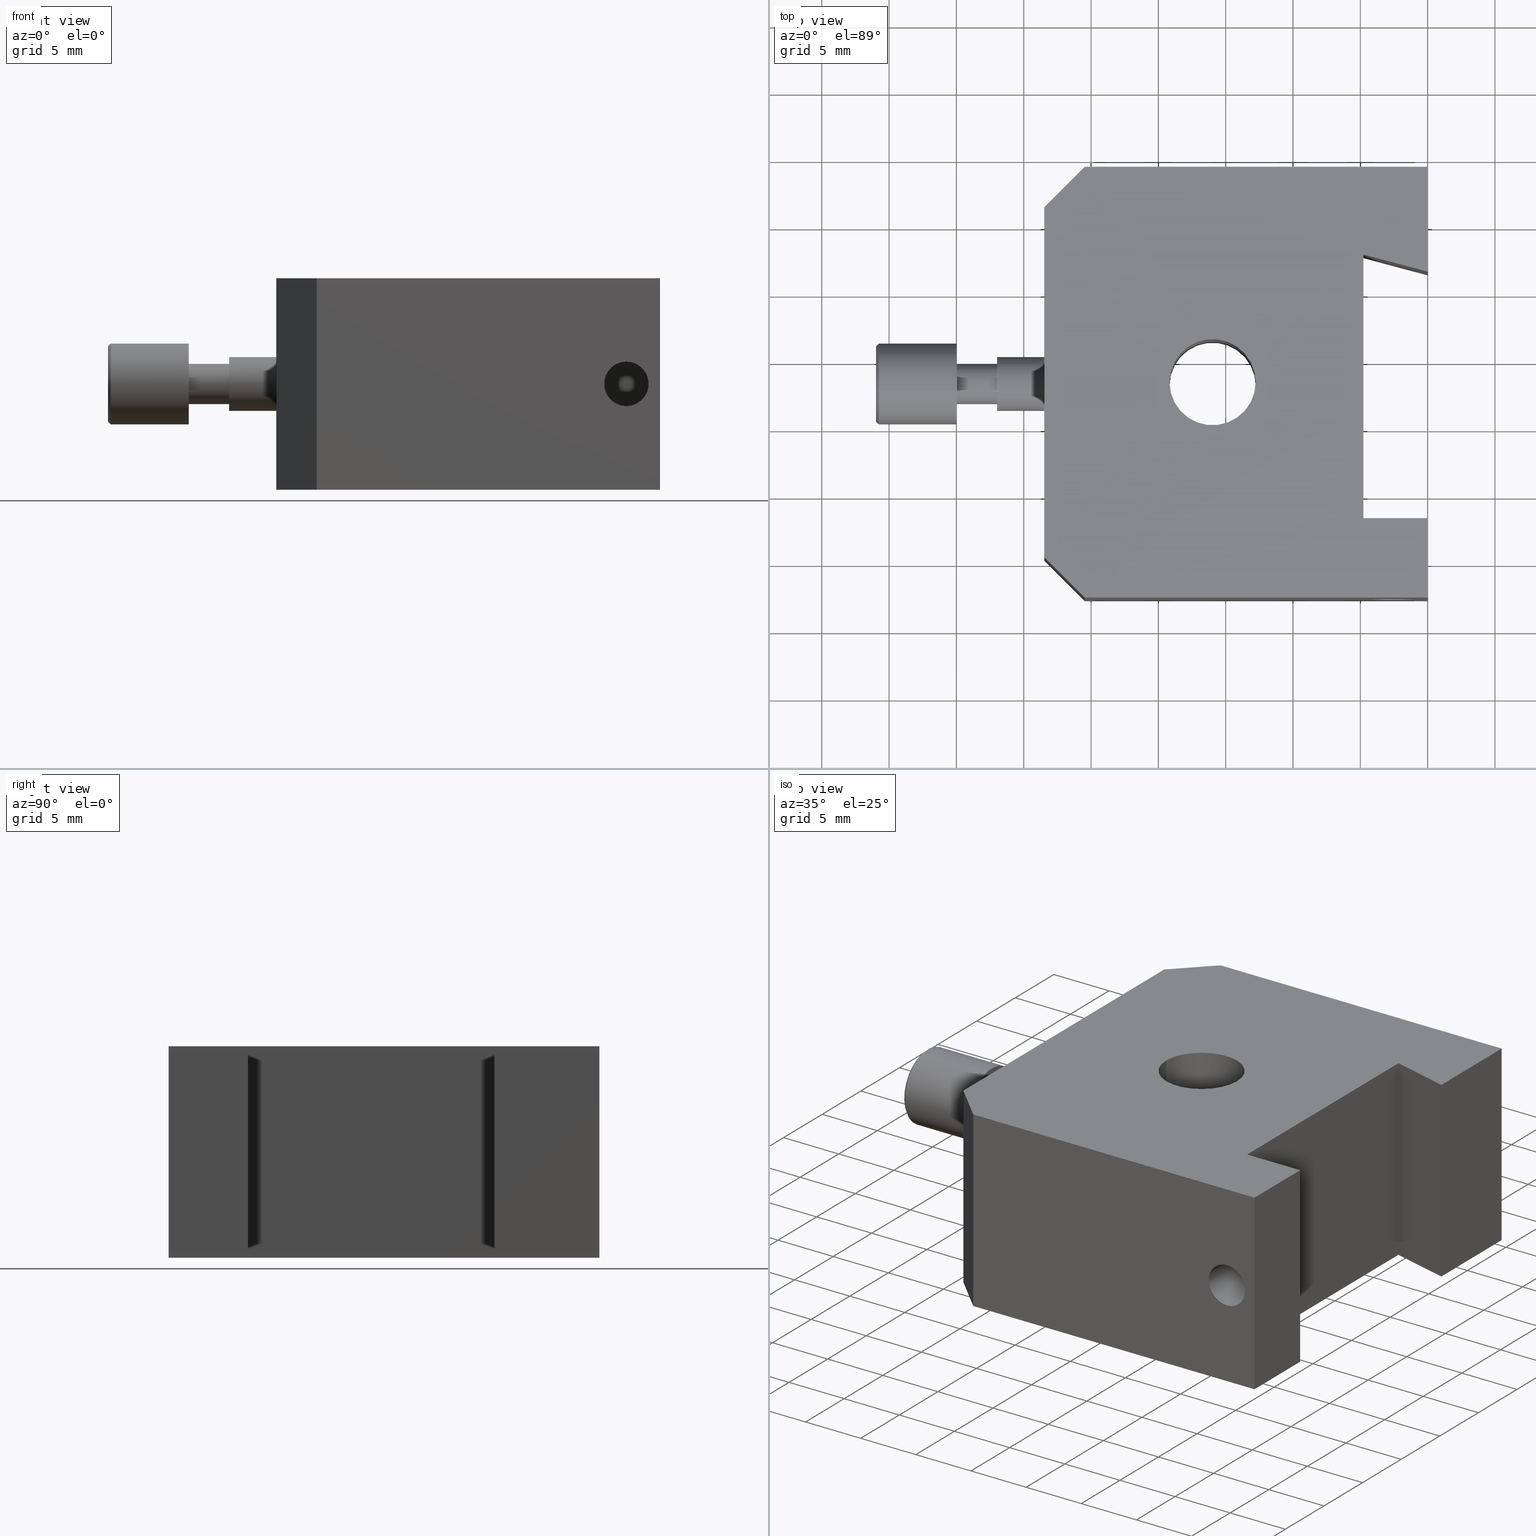
[diagram: canonical four-view strip — front | top / right | iso, engineering-drawing reading convention]
A machine part, canonical four-view strip (front | top / right | iso — engineering-drawing reading convention). The complete STEP part file that produces these views, byte-faithful:
ISO-10303-21;
HEADER;
FILE_DESCRIPTION (( 'STEP AP203' ),
    '1' );
FILE_NAME ('MF-FC.STEP',
    '2020-02-28T01:50:49',
    ( '΢���û�' ),
    ( '΢���й�' ),
    'SwSTEP 2.0',
    'SolidWorks 2016',
    '' );
FILE_SCHEMA (( 'CONFIG_CONTROL_DESIGN' ));
ENDSEC;

DATA;
#1 = DIRECTION ( 'NONE',  ( -1.000000000000000000, -0.0000000000000000000, -0.0000000000000000000 ) ) ;
#2 = AXIS2_PLACEMENT_3D ( 'NONE', #375, #605, #786 ) ;
#3 = FACE_OUTER_BOUND ( 'NONE', #449, .T. ) ;
#4 = VECTOR ( 'NONE', #27, 1000.000000000000000 ) ;
#5 = LINE ( 'NONE', #545, #995 ) ;
#6 = VERTEX_POINT ( 'NONE', #857 ) ;
#7 = DIRECTION ( 'NONE',  ( -0.0000000000000000000, -1.000000000000000000, -0.0000000000000000000 ) ) ;
#8 = ORIENTED_EDGE ( 'NONE', *, *, #869, .F. ) ;
#9 = AXIS2_PLACEMENT_3D ( 'NONE', #692, #548, #241 ) ;
#10 = VECTOR ( 'NONE', #322, 1000.000000000000000 ) ;
#11 = CARTESIAN_POINT ( 'NONE',  ( -4.223472065991749100, -1.599800024996652600, 24.15000000000000200 ) ) ;
#12 = ADVANCED_FACE ( 'NONE', ( #463 ), #632, .T. ) ;
#13 = ORIENTED_EDGE ( 'NONE', *, *, #106, .F. ) ;
#14 = DATE_AND_TIME ( #242, #442 ) ;
#15 = EDGE_CURVE ( 'NONE', #882, #868, #842, .T. ) ;
#16 = DIRECTION ( 'NONE',  ( 0.0000000000000000000, -0.1960853106169124200, 0.9805868400913144700 ) ) ;
#17 = AXIS2_PLACEMENT_3D ( 'NONE', #46, #486, #310 ) ;
#18 = PLANE ( 'NONE',  #622 ) ;
#19 = CARTESIAN_POINT ( 'NONE',  ( -21.97105950749486100, -1.599800024996657100, 32.00000000000000700 ) ) ;
#20 = DIRECTION ( 'NONE',  ( 0.0000000000000000000, 0.0000000000000000000, -1.000000000000000000 ) ) ;
#21 = EDGE_CURVE ( 'NONE', #941, #405, #37, .T. ) ;
#22 = PLANE ( 'NONE',  #770 ) ;
#23 = AXIS2_PLACEMENT_3D ( 'NONE', #864, #338, #780 ) ;
#24 = EDGE_CURVE ( 'NONE', #450, #221, #260, .T. ) ;
#25 = EDGE_LOOP ( 'NONE', ( #890, #202 ) ) ;
#26 = ORIENTED_EDGE ( 'NONE', *, *, #531, .T. ) ;
#27 = DIRECTION ( 'NONE',  ( 1.000000000000000000, -3.614007241618350200E-016, 0.0000000000000000000 ) ) ;
#28 = LINE ( 'NONE', #717, #627 ) ;
#29 = PERSON_AND_ORGANIZATION ( #388, #152 ) ;
#30 = ORIENTED_EDGE ( 'NONE', *, *, #112, .T. ) ;
#31 = ORIENTED_EDGE ( 'NONE', *, *, #744, .F. ) ;
#32 = EDGE_CURVE ( 'NONE', #509, #371, #434, .T. ) ;
#33 = EDGE_CURVE ( 'NONE', #456, #760, #814, .T. ) ;
#34 = DIRECTION ( 'NONE',  ( 0.0000000000000000000, 0.0000000000000000000, 1.000000000000000000 ) ) ;
#35 = VECTOR ( 'NONE', #198, 1000.000000000000000 ) ;
#36 = VECTOR ( 'NONE', #722, 1000.000000000000100 ) ;
#37 = LINE ( 'NONE', #166, #231 ) ;
#38 = ORIENTED_EDGE ( 'NONE', *, *, #532, .F. ) ;
#39 = DIRECTION ( 'NONE',  ( 1.000000000000000000, 0.0000000000000000000, -0.0000000000000000000 ) ) ;
#40 = PERSON_AND_ORGANIZATION_ROLE ( 'design_supplier' ) ;
#41 = VERTEX_POINT ( 'NONE', #324 ) ;
#42 = DIRECTION ( 'NONE',  ( 0.0000000000000000000, 0.0000000000000000000, 1.000000000000000000 ) ) ;
#43 = VECTOR ( 'NONE', #930, 1000.000000000000000 ) ;
#44 = ORIENTED_EDGE ( 'NONE', *, *, #493, .T. ) ;
#45 = APPROVAL_DATE_TIME ( #266, #123 ) ;
#46 = CARTESIAN_POINT ( 'NONE',  ( -30.97105950749485700, -1.599800024996657100, 32.00000000000000700 ) ) ;
#47 = ORIENTED_EDGE ( 'NONE', *, *, #835, .F. ) ;
#48 = EDGE_CURVE ( 'NONE', #954, #895, #5, .T. ) ;
#49 = CARTESIAN_POINT ( 'NONE',  ( 7.526527934008249200, -11.69980002499665000, 30.35000000000000900 ) ) ;
#50 = EDGE_CURVE ( 'NONE', #810, #79, #201, .T. ) ;
#51 = CARTESIAN_POINT ( 'NONE',  ( -9.011089032408511600, -2.610441340604577700, 30.69139130387995400 ) ) ;
#52 = ORIENTED_EDGE ( 'NONE', *, *, #314, .F. ) ;
#53 = EDGE_CURVE ( 'NONE', #790, #456, #413, .T. ) ;
#54 = ORIENTED_EDGE ( 'NONE', *, *, #893, .F. ) ;
#55 = ORIENTED_EDGE ( 'NONE', *, *, #314, .T. ) ;
#56 = DIRECTION ( 'NONE',  ( 1.084202172485504400E-016, -1.000000000000000000, 0.0000000000000000000 ) ) ;
#57 = EDGE_CURVE ( 'NONE', #252, #954, #588, .T. ) ;
#58 = CARTESIAN_POINT ( 'NONE',  ( -8.893914809134829000, -2.917736493077004200, 33.01519117719818300 ) ) ;
#59 = PLANE ( 'NONE',  #244 ) ;
#60 = CIRCLE ( 'NONE', #511, 1.499999999999996900 ) ;
#61 = ADVANCED_FACE ( 'NONE', ( #699 ), #304, .T. ) ;
#62 = ORIENTED_EDGE ( 'NONE', *, *, #547, .T. ) ;
#63 = DIRECTION ( 'NONE',  ( 0.0000000000000000000, 0.1960853106169124500, -0.9805868400913143600 ) ) ;
#64 = CIRCLE ( 'NONE', #195, 3.000000000000000400 ) ;
#65 = AXIS2_PLACEMENT_3D ( 'NONE', #460, #924, #391 ) ;
#66 = DIRECTION ( 'NONE',  ( -0.9659258262890692000, 0.2588190451025176300, -0.0000000000000000000 ) ) ;
#67 = VECTOR ( 'NONE', #270, 1000.000000000000000 ) ;
#68 = EDGE_LOOP ( 'NONE', ( #794, #428, #55, #120 ) ) ;
#69 = ORIENTED_EDGE ( 'NONE', *, *, #476, .T. ) ;
#70 = DIRECTION ( 'NONE',  ( 0.0000000000000000000, -0.1960853106169123700, 0.9805868400913143600 ) ) ;
#71 = EDGE_CURVE ( 'NONE', #252, #205, #767, .T. ) ;
#72 = EDGE_CURVE ( 'NONE', #205, #569, #889, .T. ) ;
#73 = ORIENTED_EDGE ( 'NONE', *, *, #816, .T. ) ;
#74 = APPROVAL_PERSON_ORGANIZATION ( #291, #123, #968 ) ;
#75 = DIRECTION ( 'NONE',  ( -0.0000000000000000000, 0.0000000000000000000, -1.000000000000000000 ) ) ;
#76 = ORIENTED_EDGE ( 'NONE', *, *, #95, .T. ) ;
#77 = DIRECTION ( 'NONE',  ( -0.9659258262890692000, 0.2588190451025176300, -0.0000000000000000000 ) ) ;
#78 = EDGE_CURVE ( 'NONE', #760, #456, #280, .T. ) ;
#79 = VERTEX_POINT ( 'NONE', #724 ) ;
#80 = ORIENTED_EDGE ( 'NONE', *, *, #292, .T. ) ;
#81 = ORIENTED_EDGE ( 'NONE', *, *, #57, .F. ) ;
#82 = CARTESIAN_POINT ( 'NONE',  ( -8.894092455461907000, -0.2823452086642411200, 33.01562420195188000 ) ) ;
#83 = CYLINDRICAL_SURFACE ( 'NONE', #846, 3.000000000000000400 ) ;
#84 = DIRECTION ( 'NONE',  ( 0.0000000000000000000, 0.1960853106169124200, -0.9805868400913144700 ) ) ;
#85 = CARTESIAN_POINT ( 'NONE',  ( -8.722010066310755100, 0.03915196510323971200, 31.78040967501803100 ) ) ;
#86 = LINE ( 'NONE', #276, #859 ) ;
#87 = AXIS2_PLACEMENT_3D ( 'NONE', #150, #843, #316 ) ;
#88 = EDGE_CURVE ( 'NONE', #6, #252, #86, .T. ) ;
#89 = ORIENTED_EDGE ( 'NONE', *, *, #547, .F. ) ;
#90 = CARTESIAN_POINT ( 'NONE',  ( -9.167839225159971400, -1.381251068296959200, 30.36084393243336200 ) ) ;
#91 = EDGE_CURVE ( 'NONE', #135, #759, #60, .T. ) ;
#92 = ORIENTED_EDGE ( 'NONE', *, *, #416, .F. ) ;
#93 = CARTESIAN_POINT ( 'NONE',  ( -4.223472065991749100, -1.599800024996652600, 39.84999999999999400 ) ) ;
#94 = ORIENTED_EDGE ( 'NONE', *, *, #292, .F. ) ;
#95 = EDGE_CURVE ( 'NONE', #999, #564, #480, .T. ) ;
#96 = CARTESIAN_POINT ( 'NONE',  ( 7.526527934008249200, -11.69980002499665000, 32.00000000000000000 ) ) ;
#97 = ORIENTED_EDGE ( 'NONE', *, *, #33, .F. ) ;
#98 = COORDINATED_UNIVERSAL_TIME_OFFSET ( 8, 0, .AHEAD. ) ;
#99 = DIRECTION ( 'NONE',  ( -0.9659258262890692000, 0.2588190451025176300, 0.0000000000000000000 ) ) ;
#100 = VERTEX_POINT ( 'NONE', #505 ) ;
#101 = ORIENTED_EDGE ( 'NONE', *, *, #72, .T. ) ;
#102 = VECTOR ( 'NONE', #358, 1000.000000000000000 ) ;
#103 = EDGE_CURVE ( 'NONE', #564, #999, #453, .T. ) ;
#104 = CARTESIAN_POINT ( 'NONE',  ( -9.971059507494862500, -1.599800024996657100, 32.00000000000000700 ) ) ;
#105 = VERTEX_POINT ( 'NONE', #110 ) ;
#106 = EDGE_CURVE ( 'NONE', #855, #677, #253, .T. ) ;
#107 = CARTESIAN_POINT ( 'NONE',  ( -21.97105950749486100, -1.893927990922026100, 33.47088026013697300 ) ) ;
#108 = ORIENTED_EDGE ( 'NONE', *, *, #915, .F. ) ;
#109 = FACE_OUTER_BOUND ( 'NONE', #284, .T. ) ;
#110 = CARTESIAN_POINT ( 'NONE',  ( -30.97105950749485700, -1.050761155269301500, 29.25435684774432600 ) ) ;
#111 = DIRECTION ( 'NONE',  ( -0.0000000000000000000, -0.0000000000000000000, 1.000000000000000000 ) ) ;
#112 = EDGE_CURVE ( 'NONE', #855, #564, #28, .T. ) ;
#113 = ORIENTED_EDGE ( 'NONE', *, *, #915, .T. ) ;
#114 = AXIS2_PLACEMENT_3D ( 'NONE', #406, #1, #943 ) ;
#115 = EDGE_CURVE ( 'NONE', #677, #999, #834, .T. ) ;
#116 = CARTESIAN_POINT ( 'NONE',  ( 5.226527934008252900, -11.69980002499665000, 24.15000000000000200 ) ) ;
#117 = CARTESIAN_POINT ( 'NONE',  ( -24.97105950749486100, -1.893927990922026100, 33.47088026013697300 ) ) ;
#118 = CARTESIAN_POINT ( 'NONE',  ( -18.47347206599175400, -1.599800024996654200, 32.00000000000000000 ) ) ;
#119 = DIRECTION ( 'NONE',  ( 0.0000000000000000000, -0.1960853106169125300, 0.9805868400913143600 ) ) ;
#120 = ORIENTED_EDGE ( 'NONE', *, *, #50, .T. ) ;
#121 = EDGE_CURVE ( 'NONE', #860, #759, #648, .T. ) ;
#122 = MECHANICAL_CONTEXT ( 'NONE', #510, 'mechanical' ) ;
#123 = APPROVAL ( #432, 'δָ��' ) ;
#124 = DIRECTION ( 'NONE',  ( 1.000000000000000000, 0.0000000000000000000, -0.0000000000000000000 ) ) ;
#125 = PERSON_AND_ORGANIZATION_ROLE ( 'classification_officer' ) ;
#126 = LOCAL_TIME ( 9, 50, 49.00000000000000000, #343 ) ;
#127 = AXIS2_PLACEMENT_3D ( 'NONE', #357, #797, #271 ) ;
#128 = AXIS2_PLACEMENT_3D ( 'NONE', #104, #572, #16 ) ;
#129 = CARTESIAN_POINT ( 'NONE',  ( 10.02652793400824600, 14.40019997500335200, 39.84999999999999400 ) ) ;
#130 = ORIENTED_EDGE ( 'NONE', *, *, #349, .F. ) ;
#131 = VECTOR ( 'NONE', #535, 1000.000000000000000 ) ;
#132 = CC_DESIGN_APPROVAL ( #123, ( #167 ) ) ;
#133 = CIRCLE ( 'NONE', #714, 3.000000000000000400 ) ;
#134 = CARTESIAN_POINT ( 'NONE',  ( -30.77105950749485800, -2.188055956847394100, 34.94176052027395200 ) ) ;
#135 = VERTEX_POINT ( 'NONE', #417 ) ;
#136 = AXIS2_PLACEMENT_3D ( 'NONE', #352, #792, #420 ) ;
#137 = FACE_OUTER_BOUND ( 'NONE', #684, .T. ) ;
#138 = DIRECTION ( 'NONE',  ( -0.7071067811865491300, -0.7071067811865459100, -0.0000000000000000000 ) ) ;
#139 = CARTESIAN_POINT ( 'NONE',  ( -8.923209831395700700, -2.842976482347600700, 30.90994981519202900 ) ) ;
#140 = DIRECTION ( 'NONE',  ( -1.000000000000000000, 0.0000000000000000000, 0.0000000000000000000 ) ) ;
#141 = DIRECTION ( 'NONE',  ( -1.000000000000000000, 0.0000000000000000000, 0.0000000000000000000 ) ) ;
#142 = ADVANCED_FACE ( 'NONE', ( #608, #427 ), #952, .F. ) ;
#143 = CARTESIAN_POINT ( 'NONE',  ( -9.010791496980640900, -2.611333233976987200, 33.30792054268961500 ) ) ;
#144 = CARTESIAN_POINT ( 'NONE',  ( -30.97105950749485700, -1.599800024996657100, 32.00000000000000700 ) ) ;
#145 = B_SPLINE_CURVE_WITH_KNOTS ( 'NONE', 3,
 ( #1002, #771, #400, #938, #477, #1004, #554, #82, #623, #164, #698, #247, #858, #341, #85, #403, #334, #778, #251, #939, #702, #402, #557, #90, #776, #332 ),
 .UNSPECIFIED., .F., .F.,
 ( 4, 2, 2, 2, 2, 2, 2, 2, 2, 2, 2, 2, 4 ),
 ( 6.412356992091386500E-017, 0.0003284423332869338300, 0.0006568846665738034700, 0.001313769333147552300, 0.001970653999721301100, 0.002299096333008185300, 0.002627538666295069900, 0.002955980999581954100, 0.003284423332868838300, 0.003941307999442608300, 0.004598192666016377500, 0.004926634999303262600, 0.005255077332590147600 ),
 .UNSPECIFIED. ) ;
#146 = CARTESIAN_POINT ( 'NONE',  ( -30.77105950749485800, -1.599800024996657100, 32.00000000000000700 ) ) ;
#147 = CARTESIAN_POINT ( 'NONE',  ( 5.226527934008251100, 7.886356098672719900, 39.84999999999999400 ) ) ;
#148 = AXIS2_PLACEMENT_3D ( 'NONE', #11, #348, #789 ) ;
#149 = CARTESIAN_POINT ( 'NONE',  ( -18.47347206599175000, -1.599800024996654200, 33.64999999999999100 ) ) ;
#150 = CARTESIAN_POINT ( 'NONE',  ( -9.971059507494862500, -1.599800024996657100, 32.00000000000000700 ) ) ;
#151 = FACE_OUTER_BOUND ( 'NONE', #162, .T. ) ;
#152 = ORGANIZATION ( 'δָ��', 'δָ��', '' ) ;
#153 = CARTESIAN_POINT ( 'NONE',  ( 5.226527934008251100, 7.886356098672719900, 39.84999999999999400 ) ) ;
#154 = ORIENTED_EDGE ( 'NONE', *, *, #88, .T. ) ;
#155 = LINE ( 'NONE', #147, #738 ) ;
#156 = CARTESIAN_POINT ( 'NONE',  ( -15.47347206599175500, -17.59980002499665400, 24.15000000000000200 ) ) ;
#157 = VECTOR ( 'NONE', #138, 1000.000000000000000 ) ;
#158 = ORIENTED_EDGE ( 'NONE', *, *, #78, .F. ) ;
#159 = CARTESIAN_POINT ( 'NONE',  ( 5.226527934008251100, 7.886356098672719900, 24.15000000000000200 ) ) ;
#160 = AXIS2_PLACEMENT_3D ( 'NONE', #96, #817, #370 ) ;
#161 = VECTOR ( 'NONE', #226, 1000.000000000000000 ) ;
#162 = EDGE_LOOP ( 'NONE', ( #935, #44, #305, #617 ) ) ;
#163 = AXIS2_PLACEMENT_3D ( 'NONE', #492, #268, #99 ) ;
#164 = CARTESIAN_POINT ( 'NONE',  ( -8.766193291161991800, -0.03681336894493519200, 32.53949007844130400 ) ) ;
#165 = AXIS2_PLACEMENT_3D ( 'NONE', #177, #173, #263 ) ;
#166 = CARTESIAN_POINT ( 'NONE',  ( 10.02652793400824600, 14.40019997500335200, 24.15000000000000200 ) ) ;
#167 = PRODUCT_DEFINITION_FORMATION_WITH_SPECIFIED_SOURCE ( '�κ�', '', #222, .NOT_KNOWN. ) ;
#168 = AXIS2_PLACEMENT_3D ( 'NONE', #948, #7, #488 ) ;
#169 = ORIENTED_EDGE ( 'NONE', *, *, #799, .T. ) ;
#170 = AXIS2_PLACEMENT_3D ( 'NONE', #898, #739, #729 ) ;
#171 = CIRCLE ( 'NONE', #170, 3.000000000000000400 ) ;
#172 = CC_DESIGN_DATE_AND_TIME_ASSIGNMENT ( #490, #896, ( #902 ) ) ;
#173 = DIRECTION ( 'NONE',  ( 1.000000000000000000, 0.0000000000000000000, 0.0000000000000000000 ) ) ;
#174 = VECTOR ( 'NONE', #611, 1000.000000000000000 ) ;
#175 = LINE ( 'NONE', #751, #157 ) ;
#176 = LINE ( 'NONE', #819, #537 ) ;
#177 = CARTESIAN_POINT ( 'NONE',  ( -30.97105950749485700, -1.599800024996657100, 32.00000000000000700 ) ) ;
#178 = AXIS2_PLACEMENT_3D ( 'NONE', #211, #750, #296 ) ;
#179 = CC_DESIGN_PERSON_AND_ORGANIZATION_ASSIGNMENT ( #318, #366, ( #902 ) ) ;
#180 = ORIENTED_EDGE ( 'NONE', *, *, #272, .T. ) ;
#181 = DIRECTION ( 'NONE',  ( 1.000000000000000000, 0.0000000000000000000, -0.0000000000000000000 ) ) ;
#182 = CYLINDRICAL_SURFACE ( 'NONE', #9, 3.200000000000000200 ) ;
#183 = ADVANCED_FACE ( 'NONE', ( #989 ), #265, .F. ) ;
#184 = AXIS2_PLACEMENT_3D ( 'NONE', #129, #903, #374 ) ;
#185 = ORIENTED_EDGE ( 'NONE', *, *, #741, .F. ) ;
#186 = DIRECTION ( 'NONE',  ( 0.0000000000000000000, -1.000000000000000000, 0.0000000000000000000 ) ) ;
#187 = CARTESIAN_POINT ( 'NONE',  ( -30.97105950749485700, -1.050761155269301500, 29.25435684774432600 ) ) ;
#188 = AXIS2_PLACEMENT_3D ( 'NONE', #907, #444, #977 ) ;
#189 = CARTESIAN_POINT ( 'NONE',  ( -18.47347206599175000, -1.599800024996654200, 32.00000000000000000 ) ) ;
#190 = ORIENTED_EDGE ( 'NONE', *, *, #115, .F. ) ;
#191 = DIRECTION ( 'NONE',  ( 0.0000000000000000000, 0.0000000000000000000, 1.000000000000000000 ) ) ;
#192 = LINE ( 'NONE', #513, #731 ) ;
#193 = AXIS2_PLACEMENT_3D ( 'NONE', #973, #39, #584 ) ;
#194 = ORIENTED_EDGE ( 'NONE', *, *, #416, .T. ) ;
#195 = AXIS2_PLACEMENT_3D ( 'NONE', #911, #447, #980 ) ;
#196 = APPLICATION_CONTEXT ( 'configuration controlled 3d designs of mechanical parts and assemblies' ) ;
#197 = CIRCLE ( 'NONE', #218, 2.800000000000006000 ) ;
#198 = DIRECTION ( 'NONE',  ( 1.000000000000000000, 0.0000000000000000000, -0.0000000000000000000 ) ) ;
#199 = APPROVAL_STATUS ( 'not_yet_approved' ) ;
#200 = FACE_OUTER_BOUND ( 'NONE', #737, .T. ) ;
#201 = CIRCLE ( 'NONE', #508, 3.000000000000000400 ) ;
#202 = ORIENTED_EDGE ( 'NONE', *, *, #293, .F. ) ;
#203 = CARTESIAN_POINT ( 'NONE',  ( -30.97105950749485700, -2.188055956847394100, 34.94176052027395200 ) ) ;
#204 = LINE ( 'NONE', #936, #419 ) ;
#205 = VERTEX_POINT ( 'NONE', #566 ) ;
#206 = AXIS2_PLACEMENT_3D ( 'NONE', #600, #140, #670 ) ;
#207 = DIRECTION ( 'NONE',  ( -1.084202172485504400E-016, 1.000000000000000000, -0.0000000000000000000 ) ) ;
#208 = LOCAL_TIME ( 9, 50, 49.00000000000000000, #422 ) ;
#209 = CARTESIAN_POINT ( 'NONE',  ( -5.973472065991750800, -1.599800024996652600, 24.15000000000000200 ) ) ;
#210 = AXIS2_PLACEMENT_3D ( 'NONE', #303, #827, #384 ) ;
#211 = CARTESIAN_POINT ( 'NONE',  ( -21.97105950749486100, -1.599800024996657100, 32.00000000000000700 ) ) ;
#212 = ORIENTED_EDGE ( 'NONE', *, *, #532, .T. ) ;
#213 = CARTESIAN_POINT ( 'NONE',  ( -8.837398300917314500, -3.028873737863115400, 31.16836954747016700 ) ) ;
#214 = DIRECTION ( 'NONE',  ( 1.000000000000000000, 0.0000000000000000000, -0.0000000000000000000 ) ) ;
#215 = ADVANCED_FACE ( 'NONE', ( #407 ), #392, .F. ) ;
#216 = DIRECTION ( 'NONE',  ( 0.0000000000000000000, -0.1960853106169124800, 0.9805868400913143600 ) ) ;
#217 = CC_DESIGN_APPROVAL ( #227, ( #902 ) ) ;
#218 = AXIS2_PLACEMENT_3D ( 'NONE', #144, #676, #220 ) ;
#219 = CARTESIAN_POINT ( 'NONE',  ( -9.088656274040912900, -2.338633973434413300, 33.47925767792030900 ) ) ;
#220 = DIRECTION ( 'NONE',  ( 0.0000000000000000000, -0.1960853106169123700, 0.9805868400913143600 ) ) ;
#221 = VERTEX_POINT ( 'NONE', #870 ) ;
#222 = PRODUCT ( 'MF-FC', 'MF-FC', '', ( #122 ) ) ;
#223 = VECTOR ( 'NONE', #181, 1000.000000000000000 ) ;
#224 = CARTESIAN_POINT ( 'NONE',  ( -9.173472065991752800, -1.599800024996652200, 39.84999999999999400 ) ) ;
#225 = ORIENTED_EDGE ( 'NONE', *, *, #897, .F. ) ;
#226 = DIRECTION ( 'NONE',  ( -1.000000000000000000, -0.0000000000000000000, -0.0000000000000000000 ) ) ;
#227 = APPROVAL ( #288, 'δָ��' ) ;
#228 = CIRCLE ( 'NONE', #206, 1.499999999999996900 ) ;
#229 = PLANE ( 'NONE',  #23 ) ;
#230 = LINE ( 'NONE', #360, #4 ) ;
#231 = VECTOR ( 'NONE', #246, 1000.000000000000000 ) ;
#232 = ORIENTED_EDGE ( 'NONE', *, *, #272, .F. ) ;
#233 = ORIENTED_EDGE ( 'NONE', *, *, #115, .T. ) ;
#234 = AXIS2_PLACEMENT_3D ( 'NONE', #381, #214, #526 ) ;
#235 = AXIS2_PLACEMENT_3D ( 'NONE', #992, #539, #70 ) ;
#236 = CARTESIAN_POINT ( 'NONE',  ( -18.47347206599175400, 11.40019997500334800, 24.15000000000000200 ) ) ;
#237 = LINE ( 'NONE', #236, #636 ) ;
#238 = PRODUCT_RELATED_PRODUCT_CATEGORY ( 'detail', '', ( #222 ) ) ;
#239 = CARTESIAN_POINT ( 'NONE',  ( 7.526527934008249200, -17.59980002499665400, 32.00000000000000000 ) ) ;
#240 = ORIENTED_EDGE ( 'NONE', *, *, #881, .T. ) ;
#241 = DIRECTION ( 'NONE',  ( 1.000000000000000000, 0.0000000000000000000, 0.0000000000000000000 ) ) ;
#242 = CALENDAR_DATE ( 2020, 28, 2 ) ;
#243 = DIRECTION ( 'NONE',  ( -0.0000000000000000000, -0.0000000000000000000, 1.000000000000000000 ) ) ;
#244 = AXIS2_PLACEMENT_3D ( 'NONE', #983, #309, #832 ) ;
#245 = CARTESIAN_POINT ( 'NONE',  ( 7.526527934008249200, -11.69980002499665000, 32.00000000000000000 ) ) ;
#246 = DIRECTION ( 'NONE',  ( -1.084202172485504400E-016, 1.000000000000000000, -0.0000000000000000000 ) ) ;
#247 = CARTESIAN_POINT ( 'NONE',  ( -8.722050754803396100, 0.03908445839297087400, 32.22010866707883300 ) ) ;
#248 = AXIS2_PLACEMENT_3D ( 'NONE', #245, #774, #330 ) ;
#249 = ORIENTED_EDGE ( 'NONE', *, *, #942, .F. ) ;
#250 = ORIENTED_EDGE ( 'NONE', *, *, #881, .F. ) ;
#251 = CARTESIAN_POINT ( 'NONE',  ( -8.894539066389590700, -0.2833107156635296700, 30.98310607511997400 ) ) ;
#252 = VERTEX_POINT ( 'NONE', #784 ) ;
#253 = CIRCLE ( 'NONE', #136, 2.000000000000000000 ) ;
#254 = PERSON_AND_ORGANIZATION ( #388, #152 ) ;
#255 = ORIENTED_EDGE ( 'NONE', *, *, #24, .F. ) ;
#256 = ORIENTED_EDGE ( 'NONE', *, *, #57, .T. ) ;
#257 = AXIS2_PLACEMENT_3D ( 'NONE', #680, #838, #390 ) ;
#258 = LINE ( 'NONE', #592, #35 ) ;
#259 = FACE_OUTER_BOUND ( 'NONE', #769, .T. ) ;
#260 = CIRCLE ( 'NONE', #590, 1.649999999999991700 ) ;
#261 = AXIS2_PLACEMENT_3D ( 'NONE', #888, #424, #962 ) ;
#262 = VERTEX_POINT ( 'NONE', #414 ) ;
#263 = DIRECTION ( 'NONE',  ( 0.0000000000000000000, 0.1960853106169125300, -0.9805868400913143600 ) ) ;
#264 = ORIENTED_EDGE ( 'NONE', *, *, #21, .T. ) ;
#265 = PLANE ( 'NONE',  #163 ) ;
#266 = DATE_AND_TIME ( #471, #661 ) ;
#267 = ORIENTED_EDGE ( 'NONE', *, *, #518, .T. ) ;
#268 = DIRECTION ( 'NONE',  ( 0.2588190451025176300, 0.9659258262890692000, 0.0000000000000000000 ) ) ;
#269 = ADVANCED_FACE ( 'NONE', ( #781 ), #562, .T. ) ;
#270 = DIRECTION ( 'NONE',  ( -0.0000000000000000000, -0.0000000000000000000, -1.000000000000000000 ) ) ;
#271 = DIRECTION ( 'NONE',  ( 0.0000000000000000000, -0.1960853106169124200, 0.9805868400913144700 ) ) ;
#272 = EDGE_CURVE ( 'NONE', #912, #879, #761, .T. ) ;
#273 = CARTESIAN_POINT ( 'NONE',  ( -24.97105950749486100, -1.011544093145919400, 29.05823947972606500 ) ) ;
#274 = ORIENTED_EDGE ( 'NONE', *, *, #71, .T. ) ;
#275 = DIRECTION ( 'NONE',  ( 0.0000000000000000000, -0.1960853106169125300, 0.9805868400913143600 ) ) ;
#276 = CARTESIAN_POINT ( 'NONE',  ( -17.84847206599177500, -15.22480002499661800, 39.84999999999999400 ) ) ;
#277 = ORIENTED_EDGE ( 'NONE', *, *, #871, .T. ) ;
#278 = VERTEX_POINT ( 'NONE', #563 ) ;
#279 = AXIS2_PLACEMENT_3D ( 'NONE', #387, #756, #63 ) ;
#280 = CIRCLE ( 'NONE', #556, 3.200000000000000200 ) ;
#281 = CARTESIAN_POINT ( 'NONE',  ( -18.47347206599175000, -17.59980002499665400, 24.15000000000000200 ) ) ;
#282 = VERTEX_POINT ( 'NONE', #410 ) ;
#283 = FACE_OUTER_BOUND ( 'NONE', #317, .T. ) ;
#284 = EDGE_LOOP ( 'NONE', ( #250, #336, #264, #487 ) ) ;
#285 = EDGE_CURVE ( 'NONE', #100, #405, #1006, .T. ) ;
#286 = VERTEX_POINT ( 'NONE', #287 ) ;
#287 = CARTESIAN_POINT ( 'NONE',  ( -15.47347206599173800, 14.40019997500335200, 39.84999999999999400 ) ) ;
#288 = APPROVAL_STATUS ( 'not_yet_approved' ) ;
#289 = EDGE_CURVE ( 'NONE', #879, #221, #582, .T. ) ;
#290 = VERTEX_POINT ( 'NONE', #431 ) ;
#291 = PERSON_AND_ORGANIZATION ( #388, #152 ) ;
#292 = EDGE_CURVE ( 'NONE', #290, #286, #192, .T. ) ;
#293 = EDGE_CURVE ( 'NONE', #79, #810, #171, .T. ) ;
#294 = DIRECTION ( 'NONE',  ( 1.000000000000000000, 0.0000000000000000000, 0.0000000000000000000 ) ) ;
#295 = EDGE_LOOP ( 'NONE', ( #47, #255 ) ) ;
#296 = DIRECTION ( 'NONE',  ( 0.0000000000000000000, -0.1960853106169128900, 0.9805868400913142500 ) ) ;
#297 = ORIENTED_EDGE ( 'NONE', *, *, #333, .T. ) ;
#298 = ORIENTED_EDGE ( 'NONE', *, *, #72, .F. ) ;
#299 = CARTESIAN_POINT ( 'NONE',  ( -18.47347206599175400, -1.599800024996654200, 32.00000000000000000 ) ) ;
#300 = LINE ( 'NONE', #484, #502 ) ;
#301 = ADVANCED_FACE ( 'NONE', ( #151 ), #733, .F. ) ;
#302 = CARTESIAN_POINT ( 'NONE',  ( -8.743870417170544600, -3.204080733838960100, 31.55903523957472600 ) ) ;
#303 = CARTESIAN_POINT ( 'NONE',  ( -24.97105950749486100, -1.599800024996657100, 32.00000000000000700 ) ) ;
#304 = CYLINDRICAL_SURFACE ( 'NONE', #639, 2.000000000000000000 ) ;
#305 = ORIENTED_EDGE ( 'NONE', *, *, #48, .F. ) ;
#306 = CARTESIAN_POINT ( 'NONE',  ( 10.02652793400825000, 6.600199975003348200, 24.15000000000000200 ) ) ;
#307 = CARTESIAN_POINT ( 'NONE',  ( -9.145290283501468700, -2.037106257222971900, 33.59476875986369700 ) ) ;
#308 = EDGE_CURVE ( 'NONE', #41, #509, #176, .T. ) ;
#309 = DIRECTION ( 'NONE',  ( 0.0000000000000000000, 1.000000000000000000, 0.0000000000000000000 ) ) ;
#310 = DIRECTION ( 'NONE',  ( 0.0000000000000000000, 0.1960853106169125300, -0.9805868400913143600 ) ) ;
#311 = ADVANCED_FACE ( 'NONE', ( #283 ), #652, .T. ) ;
#312 = ORIENTED_EDGE ( 'NONE', *, *, #887, .F. ) ;
#313 = EDGE_CURVE ( 'NONE', #321, #79, #863, .T. ) ;
#314 = EDGE_CURVE ( 'NONE', #500, #810, #258, .T. ) ;
#315 = CARTESIAN_POINT ( 'NONE',  ( -18.47347206599175400, 14.40019997500335200, 24.15000000000000200 ) ) ;
#316 = DIRECTION ( 'NONE',  ( 0.0000000000000000000, -0.1960853106169124800, 0.9805868400913143600 ) ) ;
#317 = EDGE_LOOP ( 'NONE', ( #818, #517, #297, #779 ) ) ;
#318 = PERSON_AND_ORGANIZATION ( #388, #152 ) ;
#319 = DIRECTION ( 'NONE',  ( 1.084202172485504400E-016, -1.000000000000000000, 0.0000000000000000000 ) ) ;
#320 = VERTEX_POINT ( 'NONE', #439 ) ;
#321 = VERTEX_POINT ( 'NONE', #134 ) ;
#322 = DIRECTION ( 'NONE',  ( -0.0000000000000000000, -0.0000000000000000000, 1.000000000000000000 ) ) ;
#323 = LINE ( 'NONE', #683, #43 ) ;
#324 = CARTESIAN_POINT ( 'NONE',  ( -9.173472065991752800, -1.599800024996652200, 24.15000000000000200 ) ) ;
#325 = LINE ( 'NONE', #452, #102 ) ;
#326 = DIRECTION ( 'NONE',  ( 0.0000000000000000000, 0.0000000000000000000, -1.000000000000000000 ) ) ;
#327 = ORIENTED_EDGE ( 'NONE', *, *, #32, .T. ) ;
#328 = EDGE_CURVE ( 'NONE', #677, #855, #630, .T. ) ;
#329 = ORIENTED_EDGE ( 'NONE', *, *, #662, .T. ) ;
#330 = DIRECTION ( 'NONE',  ( 1.000000000000000000, 0.0000000000000000000, 0.0000000000000000000 ) ) ;
#331 = LINE ( 'NONE', #715, #719 ) ;
#332 = CARTESIAN_POINT ( 'NONE',  ( -9.173472065995119000, -1.599800024997431100, 30.34999999999347500 ) ) ;
#333 = EDGE_CURVE ( 'NONE', #883, #135, #840, .T. ) ;
#334 = CARTESIAN_POINT ( 'NONE',  ( -8.765913293927162900, -0.03629949361322405000, 31.46178632314176900 ) ) ;
#335 = EDGE_CURVE ( 'NONE', #759, #135, #459, .T. ) ;
#336 = ORIENTED_EDGE ( 'NONE', *, *, #465, .F. ) ;
#337 = CARTESIAN_POINT ( 'NONE',  ( 7.526527934008249200, -17.59980002499665400, 33.64999999999999100 ) ) ;
#338 = DIRECTION ( 'NONE',  ( -1.000000000000000000, -1.084202172485504400E-016, 0.0000000000000000000 ) ) ;
#339 = EDGE_CURVE ( 'NONE', #321, #500, #64, .T. ) ;
#340 = ADVANCED_BREP_SHAPE_REPRESENTATION ( 'MF-FC', ( #354, #647, #950 ), #736 ) ;
#341 = CARTESIAN_POINT ( 'NONE',  ( -8.715208692569930800, 0.05031521002724861200, 31.89176802124199400 ) ) ;
#342 = ORIENTED_EDGE ( 'NONE', *, *, #289, .F. ) ;
#343 = COORDINATED_UNIVERSAL_TIME_OFFSET ( 8, 0, .AHEAD. ) ;
#344 = EDGE_LOOP ( 'NONE', ( #113, #154, #256, #376, #899, #249, #958, #240, #329, #1005 ) ) ;
#345 = ORIENTED_EDGE ( 'NONE', *, *, #512, .F. ) ;
#346 = EDGE_CURVE ( 'NONE', #883, #860, #228, .T. ) ;
#347 = CIRCLE ( 'NONE', #235, 2.800000000000006000 ) ;
#348 = DIRECTION ( 'NONE',  ( -0.0000000000000000000, 0.0000000000000000000, 1.000000000000000000 ) ) ;
#349 = EDGE_CURVE ( 'NONE', #860, #883, #812, .T. ) ;
#350 = FACE_BOUND ( 'NONE', #949, .T. ) ;
#351 = ADVANCED_FACE ( 'NONE', ( #3 ), #783, .T. ) ;
#352 = CARTESIAN_POINT ( 'NONE',  ( -21.97105950749486100, -1.599800024996657100, 32.00000000000000700 ) ) ;
#353 = ORIENTED_EDGE ( 'NONE', *, *, #328, .T. ) ;
#354 = MANIFOLD_SOLID_BREP ( 'APFP-FC-1-1-solid1', #929 ) ;
#355 = EDGE_CURVE ( 'NONE', #105, #320, #197, .T. ) ;
#356 = LINE ( 'NONE', #839, #161 ) ;
#357 = CARTESIAN_POINT ( 'NONE',  ( -9.971059507494862500, -1.599800024996657100, 32.00000000000000700 ) ) ;
#358 = DIRECTION ( 'NONE',  ( 8.856885776992446100E-017, -1.000000000000000000, 0.0000000000000000000 ) ) ;
#359 = DIRECTION ( 'NONE',  ( 0.0000000000000000000, 0.0000000000000000000, 1.000000000000000000 ) ) ;
#360 = CARTESIAN_POINT ( 'NONE',  ( 5.226527934008252900, -11.69980002499665000, 39.84999999999999400 ) ) ;
#361 = CARTESIAN_POINT ( 'NONE',  ( 7.526527934008249200, -17.59980002499665400, 32.00000000000000000 ) ) ;
#362 = DIRECTION ( 'NONE',  ( 0.0000000000000000000, 0.0000000000000000000, -1.000000000000000000 ) ) ;
#363 =( NAMED_UNIT ( * ) SI_UNIT ( $, .STERADIAN. ) SOLID_ANGLE_UNIT ( ) );
#364 = ORIENTED_EDGE ( 'NONE', *, *, #531, .F. ) ;
#365 = CARTESIAN_POINT ( 'NONE',  ( 7.526527934008249200, -17.59980002499665400, 30.35000000000000900 ) ) ;
#366 = PERSON_AND_ORGANIZATION_ROLE ( 'creator' ) ;
#367 = VECTOR ( 'NONE', #944, 1000.000000000000000 ) ;
#368 = SHAPE_DEFINITION_REPRESENTATION ( #964, #340 ) ;
#369 = ORIENTED_EDGE ( 'NONE', *, *, #727, .T. ) ;
#370 = DIRECTION ( 'NONE',  ( 1.000000000000000000, 0.0000000000000000000, 0.0000000000000000000 ) ) ;
#371 = VERTEX_POINT ( 'NONE', #530 ) ;
#372 = CYLINDRICAL_SURFACE ( 'NONE', #279, 1.500000000000000200 ) ;
#373 = CIRCLE ( 'NONE', #669, 1.649999999999991700 ) ;
#374 = DIRECTION ( 'NONE',  ( 1.084202172485504400E-016, -1.000000000000000000, 0.0000000000000000000 ) ) ;
#375 = CARTESIAN_POINT ( 'NONE',  ( -30.97105950749485700, -1.599800024996657100, 32.00000000000000700 ) ) ;
#376 = ORIENTED_EDGE ( 'NONE', *, *, #48, .T. ) ;
#377 = CARTESIAN_POINT ( 'NONE',  ( -24.97105950749486100, -1.305672059071288200, 30.52911973986303500 ) ) ;
#378 = FACE_OUTER_BOUND ( 'NONE', #344, .T. ) ;
#379 = CARTESIAN_POINT ( 'NONE',  ( 10.02652793400825000, -11.69980002499665200, 39.84999999999999400 ) ) ;
#380 = CARTESIAN_POINT ( 'NONE',  ( -9.167642956972496600, -1.820784601364691100, 30.36122705308502000 ) ) ;
#381 = CARTESIAN_POINT ( 'NONE',  ( -30.97105950749485700, -1.599800024996657100, 32.00000000000000700 ) ) ;
#382 = DIRECTION ( 'NONE',  ( 0.0000000000000000000, 0.0000000000000000000, 1.000000000000000000 ) ) ;
#383 = CARTESIAN_POINT ( 'NONE',  ( -8.715195493333723700, -3.249937193262103700, 32.10716069215213500 ) ) ;
#384 = DIRECTION ( 'NONE',  ( 0.0000000000000000000, -0.1960853106169128900, 0.9805868400913142500 ) ) ;
#385 = ADVANCED_FACE ( 'NONE', ( #993, #613 ), #59, .F. ) ;
#386 = CARTESIAN_POINT ( 'NONE',  ( -9.173472065991752800, -1.710767539843801100, 33.64999999999999100 ) ) ;
#387 = CARTESIAN_POINT ( 'NONE',  ( -24.97105950749486100, -1.599800024996657100, 32.00000000000000700 ) ) ;
#388 = PERSON ( 'δָ��', 'δָ��', 'δָ��', ('δָ��'), ('δָ��'), ('δָ��') ) ;
#389 = ORIENTED_EDGE ( 'NONE', *, *, #476, .F. ) ;
#390 = DIRECTION ( 'NONE',  ( -1.084202172485504400E-016, 1.000000000000000000, 0.0000000000000000000 ) ) ;
#391 = DIRECTION ( 'NONE',  ( 8.856885776992444800E-017, -1.000000000000000000, 0.0000000000000000000 ) ) ;
#392 = CYLINDRICAL_SURFACE ( 'NONE', #168, 1.649999999999991700 ) ;
#393 = DIRECTION ( 'NONE',  ( 1.000000000000000000, 0.0000000000000000000, 0.0000000000000000000 ) ) ;
#394 = FACE_OUTER_BOUND ( 'NONE', #620, .T. ) ;
#395 = VECTOR ( 'NONE', #207, 1000.000000000000000 ) ;
#396 = VECTOR ( 'NONE', #243, 1000.000000000000000 ) ;
#397 = ORIENTED_EDGE ( 'NONE', *, *, #491, .F. ) ;
#398 = LINE ( 'NONE', #159, #772 ) ;
#399 = ORIENTED_EDGE ( 'NONE', *, *, #741, .T. ) ;
#400 = CARTESIAN_POINT ( 'NONE',  ( -9.167698132332370500, -1.379649984230656700, 33.63887973422819800 ) ) ;
#401 = DIRECTION ( 'NONE',  ( 1.000000000000000000, 0.0000000000000000000, 0.0000000000000000000 ) ) ;
#402 = CARTESIAN_POINT ( 'NONE',  ( -9.129321914935820500, -1.060512341000976900, 30.43692327667128000 ) ) ;
#403 = CARTESIAN_POINT ( 'NONE',  ( -8.747276946951762600, -0.003983228678095698600, 31.56669607748641200 ) ) ;
#404 = DESIGN_CONTEXT ( 'detailed design', #196, 'design' ) ;
#405 = VERTEX_POINT ( 'NONE', #918 ) ;
#406 = CARTESIAN_POINT ( 'NONE',  ( -18.47347206599175000, -1.599800024996654200, 32.00000000000000000 ) ) ;
#407 = FACE_OUTER_BOUND ( 'NONE', #435, .T. ) ;
#408 = ORIENTED_EDGE ( 'NONE', *, *, #518, .F. ) ;
#409 = CARTESIAN_POINT ( 'NONE',  ( -18.47347206599175000, -14.59980002499664300, 24.15000000000000200 ) ) ;
#410 = CARTESIAN_POINT ( 'NONE',  ( -18.47347206599175400, -1.599800024996654200, 33.64999999999999100 ) ) ;
#411 = LINE ( 'NONE', #986, #586 ) ;
#412 = CYLINDRICAL_SURFACE ( 'NONE', #635, 3.200000000000000200 ) ;
#413 = LINE ( 'NONE', #926, #396 ) ;
#414 = CARTESIAN_POINT ( 'NONE',  ( 5.226527934008251100, 7.886356098672719900, 24.15000000000000200 ) ) ;
#415 = ORIENTED_EDGE ( 'NONE', *, *, #289, .T. ) ;
#416 = EDGE_CURVE ( 'NONE', #262, #637, #411, .T. ) ;
#417 = CARTESIAN_POINT ( 'NONE',  ( -21.97105950749486100, -1.305672059071288200, 30.52911973986303500 ) ) ;
#418 = ADVANCED_FACE ( 'NONE', ( #394 ), #372, .T. ) ;
#419 = VECTOR ( 'NONE', #474, 1000.000000000000000 ) ;
#420 = DIRECTION ( 'NONE',  ( 0.0000000000000000000, -0.1960853106169124200, 0.9805868400913144700 ) ) ;
#421 = ORIENTED_EDGE ( 'NONE', *, *, #558, .T. ) ;
#422 = COORDINATED_UNIVERSAL_TIME_OFFSET ( 8, 0, .AHEAD. ) ;
#423 = DIRECTION ( 'NONE',  ( 1.000000000000000000, 0.0000000000000000000, -0.0000000000000000000 ) ) ;
#424 = DIRECTION ( 'NONE',  ( 0.0000000000000000000, 0.0000000000000000000, 1.000000000000000000 ) ) ;
#425 = EDGE_LOOP ( 'NONE', ( #682, #353 ) ) ;
#426 = CARTESIAN_POINT ( 'NONE',  ( -21.97105950749486100, -1.599800024996657100, 32.00000000000000700 ) ) ;
#427 = FACE_OUTER_BOUND ( 'NONE', #844, .T. ) ;
#428 = ORIENTED_EDGE ( 'NONE', *, *, #339, .T. ) ;
#429 = APPLICATION_PROTOCOL_DEFINITION ( 'international standard', 'config_control_design', 1994, #510 ) ;
#430 = VECTOR ( 'NONE', #745, 1000.000000000000000 ) ;
#431 = CARTESIAN_POINT ( 'NONE',  ( -15.47347206599173800, 14.40019997500335200, 24.15000000000000200 ) ) ;
#432 = APPROVAL_STATUS ( 'not_yet_approved' ) ;
#433 = FACE_OUTER_BOUND ( 'NONE', #496, .T. ) ;
#434 = LINE ( 'NONE', #624, #616 ) ;
#435 = EDGE_LOOP ( 'NONE', ( #848, #89, #415, #596 ) ) ;
#436 = DIRECTION ( 'NONE',  ( -0.0000000000000000000, -0.0000000000000000000, 1.000000000000000000 ) ) ;
#437 = LINE ( 'NONE', #473, #10 ) ;
#438 = SECURITY_CLASSIFICATION ( '', '', #585 ) ;
#439 = CARTESIAN_POINT ( 'NONE',  ( -30.97105950749485700, -2.148838894724012700, 34.74564315225569500 ) ) ;
#440 = DIRECTION ( 'NONE',  ( 1.000000000000000000, -0.0000000000000000000, -0.0000000000000000000 ) ) ;
#441 = CLOSED_SHELL ( 'NONE', ( #269, #351, #418, #12, #61, #922, #604, #311, #955, #678, #916, #712 ) ) ;
#442 = LOCAL_TIME ( 9, 50, 49.00000000000000000, #641 ) ;
#443 = DIRECTION ( 'NONE',  ( 0.0000000000000000000, 0.0000000000000000000, -1.000000000000000000 ) ) ;
#444 = DIRECTION ( 'NONE',  ( -1.000000000000000000, 0.0000000000000000000, 0.0000000000000000000 ) ) ;
#445 = DIRECTION ( 'NONE',  ( -1.000000000000000000, -0.0000000000000000000, -0.0000000000000000000 ) ) ;
#446 = CARTESIAN_POINT ( 'NONE',  ( -9.129449143000417900, -2.138623067638053800, 30.43665235747079500 ) ) ;
#447 = DIRECTION ( 'NONE',  ( 1.000000000000000000, -0.0000000000000000000, -0.0000000000000000000 ) ) ;
#448 = CARTESIAN_POINT ( 'NONE',  ( -8.747195594387193300, -3.195758858683403100, 32.43289857674930900 ) ) ;
#449 = EDGE_LOOP ( 'NONE', ( #923, #580, #656, #52 ) ) ;
#450 = VERTEX_POINT ( 'NONE', #758 ) ;
#451 = ADVANCED_FACE ( 'NONE', ( #565, #969 ), #606, .F. ) ;
#452 = CARTESIAN_POINT ( 'NONE',  ( 5.226527934008251100, 7.886356098672719900, 39.84999999999999400 ) ) ;
#453 = CIRCLE ( 'NONE', #128, 2.000000000000000000 ) ;
#454 = CARTESIAN_POINT ( 'NONE',  ( 10.02652793400824600, 14.40019997500335200, 39.84999999999999400 ) ) ;
#455 = EDGE_LOOP ( 'NONE', ( #389, #399, #1008, #645 ) ) ;
#456 = VERTEX_POINT ( 'NONE', #224 ) ;
#457 = B_SPLINE_CURVE_WITH_KNOTS ( 'NONE', 3,
 ( #595, #664, #380, #910, #446, #979, #524, #51, #599, #139, #668, #213, #752, #302, #826, #383, #917, #448, #982, #529, #58, #602, #143, #675, #219, #755, #307, #831, #386, #921 ),
 .UNSPECIFIED., .F., .F.,
 ( 4, 2, 2, 2, 2, 2, 2, 2, 2, 2, 2, 2, 2, 2, 4 ),
 ( 0.005255077332590147600, 0.005582878636888315800, 0.005910679941186482300, 0.006238481245484649700, 0.006566282549782817000, 0.006894083854080984400, 0.007221885158379150900, 0.007877487766975502900, 0.008205289071273668500, 0.008533090375571834200, 0.009188692984168165400, 0.009516494288466332800, 0.009844295592764500100, 0.01017209689706266600, 0.01049989820136083300 ),
 .UNSPECIFIED. ) ;
#458 = CARTESIAN_POINT ( 'NONE',  ( 10.02652793400825000, 6.600199975003348200, 24.15000000000000200 ) ) ;
#459 = CIRCLE ( 'NONE', #178, 1.499999999999996900 ) ;
#460 = CARTESIAN_POINT ( 'NONE',  ( 5.226527934008251100, 7.886356098672719900, 24.15000000000000200 ) ) ;
#461 = EDGE_CURVE ( 'NONE', #278, #489, #155, .T. ) ;
#462 = CIRCLE ( 'NONE', #691, 3.200000000000000200 ) ;
#463 = FACE_OUTER_BOUND ( 'NONE', #749, .T. ) ;
#464 = ORIENTED_EDGE ( 'NONE', *, *, #871, .F. ) ;
#465 = EDGE_CURVE ( 'NONE', #941, #278, #764, .T. ) ;
#466 = DIRECTION ( 'NONE',  ( 0.0000000000000000000, 0.0000000000000000000, 1.000000000000000000 ) ) ;
#467 = CARTESIAN_POINT ( 'NONE',  ( -18.47347206599175000, -17.59980002499665400, 39.84999999999999400 ) ) ;
#468 = ORIENTED_EDGE ( 'NONE', *, *, #355, .T. ) ;
#469 = CARTESIAN_POINT ( 'NONE',  ( -9.173472065995119000, -1.599800024997431100, 30.34999999999347500 ) ) ;
#470 = ORIENTED_EDGE ( 'NONE', *, *, #497, .T. ) ;
#471 = CALENDAR_DATE ( 2020, 28, 2 ) ;
#472 = EDGE_CURVE ( 'NONE', #790, #282, #544, .T. ) ;
#473 = CARTESIAN_POINT ( 'NONE',  ( -2.773472065991750700, -1.599800024996652600, 24.15000000000000200 ) ) ;
#474 = DIRECTION ( 'NONE',  ( 1.000000000000000000, -3.614007241618350200E-016, 0.0000000000000000000 ) ) ;
#475 = ORIENTED_EDGE ( 'NONE', *, *, #512, .T. ) ;
#476 = EDGE_CURVE ( 'NONE', #320, #105, #347, .T. ) ;
#477 = CARTESIAN_POINT ( 'NONE',  ( -9.129252842955871500, -1.059998882419552300, 33.56294384370184500 ) ) ;
#478 = ORIENTED_EDGE ( 'NONE', *, *, #355, .F. ) ;
#479 = ORIENTED_EDGE ( 'NONE', *, *, #558, .F. ) ;
#480 = CIRCLE ( 'NONE', #127, 2.000000000000000000 ) ;
#481 = EDGE_CURVE ( 'NONE', #671, #6, #932, .T. ) ;
#482 = ORIENTED_EDGE ( 'NONE', *, *, #472, .F. ) ;
#483 = VECTOR ( 'NONE', #124, 1000.000000000000000 ) ;
#484 = CARTESIAN_POINT ( 'NONE',  ( 5.226527934008252900, -11.69980002499665000, 24.15000000000000200 ) ) ;
#485 = VERTEX_POINT ( 'NONE', #614 ) ;
#486 = DIRECTION ( 'NONE',  ( 1.000000000000000000, 0.0000000000000000000, 0.0000000000000000000 ) ) ;
#487 = ORIENTED_EDGE ( 'NONE', *, *, #285, .F. ) ;
#488 = DIRECTION ( 'NONE',  ( 0.0000000000000000000, 0.0000000000000000000, -1.000000000000000000 ) ) ;
#489 = VERTEX_POINT ( 'NONE', #153 ) ;
#490 = DATE_AND_TIME ( #685, #900 ) ;
#491 = EDGE_CURVE ( 'NONE', #868, #671, #711, .T. ) ;
#492 = CARTESIAN_POINT ( 'NONE',  ( 5.226527934008251100, 7.886356098672719900, 24.15000000000000200 ) ) ;
#493 = EDGE_CURVE ( 'NONE', #485, #895, #323, .T. ) ;
#494 = ORIENTED_EDGE ( 'NONE', *, *, #996, .T. ) ;
#495 = ADVANCED_FACE ( 'NONE', ( #788 ), #997, .F. ) ;
#496 = EDGE_LOOP ( 'NONE', ( #701, #8, #267, #499, #987, #421 ) ) ;
#497 = EDGE_CURVE ( 'NONE', #868, #290, #237, .T. ) ;
#498 = DIRECTION ( 'NONE',  ( -1.000000000000000000, 0.0000000000000000000, 0.0000000000000000000 ) ) ;
#499 = ORIENTED_EDGE ( 'NONE', *, *, #78, .T. ) ;
#500 = VERTEX_POINT ( 'NONE', #688 ) ;
#501 = DIRECTION ( 'NONE',  ( 0.7071067811865459100, -0.7071067811865491300, 0.0000000000000000000 ) ) ;
#502 = VECTOR ( 'NONE', #793, 1000.000000000000000 ) ;
#503 = DIRECTION ( 'NONE',  ( 0.0000000000000000000, 0.1960853106169125300, -0.9805868400913143600 ) ) ;
#504 = VECTOR ( 'NONE', #362, 1000.000000000000000 ) ;
#505 = CARTESIAN_POINT ( 'NONE',  ( 10.02652793400824600, 14.40019997500335200, 39.84999999999999400 ) ) ;
#506 = ORIENTED_EDGE ( 'NONE', *, *, #95, .F. ) ;
#507 = DIRECTION ( 'NONE',  ( 1.000000000000000000, 0.0000000000000000000, -0.0000000000000000000 ) ) ;
#508 = AXIS2_PLACEMENT_3D ( 'NONE', #773, #549, #119 ) ;
#509 = VERTEX_POINT ( 'NONE', #469 ) ;
#510 = APPLICATION_CONTEXT ( 'configuration controlled 3d designs of mechanical parts and assemblies' ) ;
#511 = AXIS2_PLACEMENT_3D ( 'NONE', #19, #498, #959 ) ;
#512 = EDGE_CURVE ( 'NONE', #205, #671, #847, .T. ) ;
#513 = CARTESIAN_POINT ( 'NONE',  ( -15.47347206599173800, 14.40019997500335200, 39.84999999999999400 ) ) ;
#514 = PERSON_AND_ORGANIZATION_ROLE ( 'creator' ) ;
#515 = EDGE_LOOP ( 'NONE', ( #833, #38, #908, #690 ) ) ;
#516 = APPROVAL_DATE_TIME ( #707, #227 ) ;
#517 = ORIENTED_EDGE ( 'NONE', *, *, #346, .F. ) ;
#518 = EDGE_CURVE ( 'NONE', #610, #760, #437, .T. ) ;
#519 = VECTOR ( 'NONE', #466, 1000.000000000000000 ) ;
#520 = FACE_OUTER_BOUND ( 'NONE', #68, .T. ) ;
#521 = ORIENTED_EDGE ( 'NONE', *, *, #346, .T. ) ;
#522 = AXIS2_PLACEMENT_3D ( 'NONE', #765, #998, #401 ) ;
#523 = FACE_OUTER_BOUND ( 'NONE', #583, .T. ) ;
#524 = CARTESIAN_POINT ( 'NONE',  ( -9.064273193103744600, -2.433743126245122600, 30.57227751567231900 ) ) ;
#525 = EDGE_CURVE ( 'NONE', #941, #262, #822, .T. ) ;
#526 = DIRECTION ( 'NONE',  ( 0.0000000000000000000, 0.1960853106169125300, -0.9805868400913143600 ) ) ;
#527 = PLANE ( 'NONE',  #708 ) ;
#528 = ADVANCED_FACE ( 'NONE', ( #593 ), #182, .F. ) ;
#529 = CARTESIAN_POINT ( 'NONE',  ( -8.833302267398016400, -3.038683196141634300, 32.83606966238326700 ) ) ;
#530 = CARTESIAN_POINT ( 'NONE',  ( -18.47347206599175400, -1.599800024996654000, 30.35000000000000900 ) ) ;
#531 = EDGE_CURVE ( 'NONE', #637, #485, #204, .T. ) ;
#532 = EDGE_CURVE ( 'NONE', #262, #489, #398, .T. ) ;
#533 = DIRECTION ( 'NONE',  ( 8.856885776992446100E-017, -1.000000000000000000, 0.0000000000000000000 ) ) ;
#534 = ORIENTED_EDGE ( 'NONE', *, *, #472, .T. ) ;
#535 = DIRECTION ( 'NONE',  ( -1.000000000000000000, -0.0000000000000000000, -0.0000000000000000000 ) ) ;
#536 = PLANE ( 'NONE',  #87 ) ;
#537 = VECTOR ( 'NONE', #436, 1000.000000000000000 ) ;
#538 = APPROVAL_PERSON_ORGANIZATION ( #732, #227, #811 ) ;
#539 = DIRECTION ( 'NONE',  ( -1.000000000000000000, 0.0000000000000000000, 0.0000000000000000000 ) ) ;
#540 = EDGE_LOOP ( 'NONE', ( #872, #506 ) ) ;
#541 = AXIS2_PLACEMENT_3D ( 'NONE', #118, #651, #191 ) ;
#542 = EDGE_LOOP ( 'NONE', ( #735, #80, #579, #850 ) ) ;
#543 = DIRECTION ( 'NONE',  ( 0.7071067811865491300, 0.7071067811865459100, 0.0000000000000000000 ) ) ;
#544 = LINE ( 'NONE', #149, #131 ) ;
#545 = CARTESIAN_POINT ( 'NONE',  ( 10.02652793400824600, 14.40019997500335200, 39.84999999999999400 ) ) ;
#546 = VECTOR ( 'NONE', #56, 1000.000000000000000 ) ;
#547 = EDGE_CURVE ( 'NONE', #879, #912, #791, .T. ) ;
#548 = DIRECTION ( 'NONE',  ( -0.0000000000000000000, -0.0000000000000000000, 1.000000000000000000 ) ) ;
#549 = DIRECTION ( 'NONE',  ( -1.000000000000000000, 0.0000000000000000000, 0.0000000000000000000 ) ) ;
#550 = ORIENTED_EDGE ( 'NONE', *, *, #497, .F. ) ;
#551 = DIRECTION ( 'NONE',  ( -0.0000000000000000000, -0.0000000000000000000, 1.000000000000000000 ) ) ;
#552 = FACE_OUTER_BOUND ( 'NONE', #681, .T. ) ;
#553 = ORIENTED_EDGE ( 'NONE', *, *, #491, .T. ) ;
#554 = CARTESIAN_POINT ( 'NONE',  ( -9.011162194683349100, -0.5809038897032183800, 33.31492599721504200 ) ) ;
#555 = DIRECTION ( 'NONE',  ( 0.0000000000000000000, 0.0000000000000000000, -1.000000000000000000 ) ) ;
#556 = AXIS2_PLACEMENT_3D ( 'NONE', #886, #359, #802 ) ;
#557 = CARTESIAN_POINT ( 'NONE',  ( -9.145733445012442800, -1.165630775485956900, 30.40435175458549500 ) ) ;
#558 = EDGE_CURVE ( 'NONE', #790, #509, #145, .T. ) ;
#559 = ORIENTED_EDGE ( 'NONE', *, *, #21, .F. ) ;
#560 = DIRECTION ( 'NONE',  ( -0.0000000000000000000, 0.0000000000000000000, 1.000000000000000000 ) ) ;
#561 = CARTESIAN_POINT ( 'NONE',  ( -21.97105950749486100, -1.991970646230481800, 33.96117368018264000 ) ) ;
#562 = CONICAL_SURFACE ( 'NONE', #165, 2.800000000000002500, 0.7853981633974439500 ) ;
#563 = CARTESIAN_POINT ( 'NONE',  ( 10.02652793400825000, 6.600199975003348200, 39.84999999999999400 ) ) ;
#564 = VERTEX_POINT ( 'NONE', #854 ) ;
#565 = FACE_BOUND ( 'NONE', #953, .T. ) ;
#566 = CARTESIAN_POINT ( 'NONE',  ( -15.47347206599175500, -17.59980002499665400, 24.15000000000000200 ) ) ;
#567 = FACE_OUTER_BOUND ( 'NONE', #425, .T. ) ;
#568 = DIRECTION ( 'NONE',  ( 1.000000000000000000, 0.0000000000000000000, -0.0000000000000000000 ) ) ;
#569 = VERTEX_POINT ( 'NONE', #867 ) ;
#570 = ADVANCED_FACE ( 'NONE', ( #571, #378 ), #852, .T. ) ;
#571 = FACE_BOUND ( 'NONE', #650, .T. ) ;
#572 = DIRECTION ( 'NONE',  ( -1.000000000000000000, 0.0000000000000000000, 0.0000000000000000000 ) ) ;
#573 = CARTESIAN_POINT ( 'NONE',  ( -18.47347206599175400, 11.40019997500334800, 39.84999999999999400 ) ) ;
#574 = AXIS2_PLACEMENT_3D ( 'NONE', #626, #777, #84 ) ;
#575 = AXIS2_PLACEMENT_3D ( 'NONE', #361, #804, #576 ) ;
#576 = DIRECTION ( 'NONE',  ( 0.0000000000000000000, 0.0000000000000000000, -1.000000000000000000 ) ) ;
#577 = CARTESIAN_POINT ( 'NONE',  ( -5.973472065991750800, -1.599800024996652600, 24.15000000000000200 ) ) ;
#578 = EDGE_CURVE ( 'NONE', #912, #450, #747, .T. ) ;
#579 = ORIENTED_EDGE ( 'NONE', *, *, #662, .F. ) ;
#580 = ORIENTED_EDGE ( 'NONE', *, *, #313, .T. ) ;
#581 = DIRECTION ( 'NONE',  ( 1.000000000000000000, 0.0000000000000000000, 0.0000000000000000000 ) ) ;
#582 = LINE ( 'NONE', #365, #966 ) ;
#583 = EDGE_LOOP ( 'NONE', ( #185, #478, #169, #1001 ) ) ;
#584 = DIRECTION ( 'NONE',  ( 0.0000000000000000000, 0.1960853106169124500, -0.9805868400913143600 ) ) ;
#585 = SECURITY_CLASSIFICATION_LEVEL ( 'unclassified' ) ;
#586 = VECTOR ( 'NONE', #533, 1000.000000000000000 ) ;
#587 = CYLINDRICAL_SURFACE ( 'NONE', #679, 1.649999999999991700 ) ;
#588 = LINE ( 'NONE', #467, #971 ) ;
#589 = ORIENTED_EDGE ( 'NONE', *, *, #807, .F. ) ;
#590 = AXIS2_PLACEMENT_3D ( 'NONE', #239, #689, #326 ) ;
#591 = AXIS2_PLACEMENT_3D ( 'NONE', #93, #560, #629 ) ;
#592 = CARTESIAN_POINT ( 'NONE',  ( -30.97105950749485700, -1.011544093145919400, 29.05823947972606500 ) ) ;
#593 = FACE_OUTER_BOUND ( 'NONE', #972, .T. ) ;
#594 = CARTESIAN_POINT ( 'NONE',  ( -18.47347206599175400, 11.40019997500334800, 39.84999999999999400 ) ) ;
#595 = CARTESIAN_POINT ( 'NONE',  ( -9.173472065995119000, -1.599800024997431100, 30.34999999999347500 ) ) ;
#596 = ORIENTED_EDGE ( 'NONE', *, *, #835, .T. ) ;
#597 = APPROVAL_DATE_TIME ( #796, #800 ) ;
#598 = CARTESIAN_POINT ( 'NONE',  ( -24.97105950749486100, -1.599800024996657100, 32.00000000000000700 ) ) ;
#599 = CARTESIAN_POINT ( 'NONE',  ( -8.981818029519573100, -2.693552808987536500, 30.76007985861035400 ) ) ;
#600 = CARTESIAN_POINT ( 'NONE',  ( -24.97105950749486100, -1.599800024996657100, 32.00000000000000700 ) ) ;
#601 = ADVANCED_FACE ( 'NONE', ( #552 ), #937, .F. ) ;
#602 = CARTESIAN_POINT ( 'NONE',  ( -8.982097258375263800, -2.692805074950035000, 33.24060766393555600 ) ) ;
#603 = ORIENTED_EDGE ( 'NONE', *, *, #15, .T. ) ;
#604 = ADVANCED_FACE ( 'NONE', ( #957 ), #536, .F. ) ;
#605 = DIRECTION ( 'NONE',  ( -1.000000000000000000, 0.0000000000000000000, 0.0000000000000000000 ) ) ;
#606 = PLANE ( 'NONE',  #257 ) ;
#607 = CARTESIAN_POINT ( 'NONE',  ( 7.526527934008249200, -17.59980002499665400, 32.00000000000000000 ) ) ;
#608 = FACE_BOUND ( 'NONE', #894, .T. ) ;
#609 = CYLINDRICAL_SURFACE ( 'NONE', #575, 1.649999999999991700 ) ;
#610 = VERTEX_POINT ( 'NONE', #704 ) ;
#611 = DIRECTION ( 'NONE',  ( -0.0000000000000000000, -0.0000000000000000000, 1.000000000000000000 ) ) ;
#612 = CARTESIAN_POINT ( 'NONE',  ( 5.226527934008252900, -11.69980002499665000, 39.84999999999999400 ) ) ;
#613 = FACE_OUTER_BOUND ( 'NONE', #660, .T. ) ;
#614 = CARTESIAN_POINT ( 'NONE',  ( 10.02652793400825000, -11.69980002499665200, 24.15000000000000200 ) ) ;
#615 = CIRCLE ( 'NONE', #657, 1.649999999999991700 ) ;
#616 = VECTOR ( 'NONE', #775, 1000.000000000000000 ) ;
#617 = ORIENTED_EDGE ( 'NONE', *, *, #744, .T. ) ;
#618 = AXIS2_PLACEMENT_3D ( 'NONE', #845, #543, #75 ) ;
#619 = VECTOR ( 'NONE', #933, 1000.000000000000000 ) ;
#620 = EDGE_LOOP ( 'NONE', ( #130, #837, #743, #706 ) ) ;
#621 = APPROVAL_PERSON_ORGANIZATION ( #823, #800, #734 ) ;
#622 = AXIS2_PLACEMENT_3D ( 'NONE', #643, #186, #718 ) ;
#623 = CARTESIAN_POINT ( 'NONE',  ( -8.833389887426490000, -0.1611386441678246100, 32.83585929332698300 ) ) ;
#624 = CARTESIAN_POINT ( 'NONE',  ( -18.47347206599175000, -1.599800024996654000, 30.35000000000000900 ) ) ;
#625 = ORIENTED_EDGE ( 'NONE', *, *, #727, .F. ) ;
#626 = CARTESIAN_POINT ( 'NONE',  ( -21.97105950749486100, -1.599800024996657100, 32.00000000000000700 ) ) ;
#627 = VECTOR ( 'NONE', #875, 1000.000000000000000 ) ;
#628 = VERTEX_POINT ( 'NONE', #612 ) ;
#629 = DIRECTION ( 'NONE',  ( 1.000000000000000000, 0.0000000000000000000, 0.0000000000000000000 ) ) ;
#630 = CIRCLE ( 'NONE', #188, 2.000000000000000000 ) ;
#631 = CIRCLE ( 'NONE', #261, 3.200000000000000200 ) ;
#632 = CYLINDRICAL_SURFACE ( 'NONE', #574, 2.000000000000000000 ) ;
#633 = CARTESIAN_POINT ( 'NONE',  ( 10.02652793400824600, 14.40019997500335200, 39.84999999999999400 ) ) ;
#634 = ORIENTED_EDGE ( 'NONE', *, *, #88, .F. ) ;
#635 = AXIS2_PLACEMENT_3D ( 'NONE', #577, #111, #803 ) ;
#636 = VECTOR ( 'NONE', #768, 1000.000000000000000 ) ;
#637 = VERTEX_POINT ( 'NONE', #762 ) ;
#638 = AXIS2_PLACEMENT_3D ( 'NONE', #573, #501, #20 ) ;
#639 = AXIS2_PLACEMENT_3D ( 'NONE', #426, #507, #892 ) ;
#640 = ADVANCED_FACE ( 'NONE', ( #137 ), #991, .F. ) ;
#641 = COORDINATED_UNIVERSAL_TIME_OFFSET ( 8, 0, .AHEAD. ) ;
#642 = CARTESIAN_POINT ( 'NONE',  ( -21.97105950749486100, -1.991970646230481800, 33.96117368018264000 ) ) ;
#643 = CARTESIAN_POINT ( 'NONE',  ( -18.47347206599175400, 14.40019997500335200, 39.84999999999999400 ) ) ;
#644 = ORIENTED_EDGE ( 'NONE', *, *, #493, .F. ) ;
#645 = ORIENTED_EDGE ( 'NONE', *, *, #799, .F. ) ;
#646 = DIRECTION ( 'NONE',  ( 1.000000000000000000, 0.0000000000000000000, 0.0000000000000000000 ) ) ;
#647 = MANIFOLD_SOLID_BREP ( 'APFP-FC-2-1-solid1', #441 ) ;
#648 = LINE ( 'NONE', #878, #809 ) ;
#649 = ORIENTED_EDGE ( 'NONE', *, *, #807, .T. ) ;
#650 = EDGE_LOOP ( 'NONE', ( #158, #97 ) ) ;
#651 = DIRECTION ( 'NONE',  ( -1.000000000000000000, -0.0000000000000000000, -0.0000000000000000000 ) ) ;
#652 = CYLINDRICAL_SURFACE ( 'NONE', #193, 1.500000000000000200 ) ;
#653 = PERSON_AND_ORGANIZATION_ROLE ( 'design_owner' ) ;
#654 = FACE_OUTER_BOUND ( 'NONE', #542, .T. ) ;
#655 = VECTOR ( 'NONE', #555, 1000.000000000000000 ) ;
#656 = ORIENTED_EDGE ( 'NONE', *, *, #293, .T. ) ;
#657 = AXIS2_PLACEMENT_3D ( 'NONE', #607, #906, #443 ) ;
#658 = DATE_TIME_ROLE ( 'classification_date' ) ;
#659 = ORIENTED_EDGE ( 'NONE', *, *, #335, .F. ) ;
#660 = EDGE_LOOP ( 'NONE', ( #81, #274, #101, #31 ) ) ;
#661 = LOCAL_TIME ( 9, 50, 49.00000000000000000, #873 ) ;
#662 = EDGE_CURVE ( 'NONE', #100, #286, #356, .T. ) ;
#663 = CARTESIAN_POINT ( 'NONE',  ( -24.97105950749486100, -1.305672059071288200, 30.52911973986303500 ) ) ;
#664 = CARTESIAN_POINT ( 'NONE',  ( -9.173472065991703100, -1.709349393203323500, 30.35000000000009700 ) ) ;
#665 = EDGE_LOOP ( 'NONE', ( #521, #931 ) ) ;
#666 = CARTESIAN_POINT ( 'NONE',  ( -18.47347206599175400, 14.40019997500335200, 39.84999999999999400 ) ) ;
#667 = ADVANCED_FACE ( 'NONE', ( #109 ), #229, .F. ) ;
#668 = CARTESIAN_POINT ( 'NONE',  ( -8.893695415370773500, -2.909998767799589100, 30.99141676558723200 ) ) ;
#669 = AXIS2_PLACEMENT_3D ( 'NONE', #299, #825, #382 ) ;
#670 = DIRECTION ( 'NONE',  ( 0.0000000000000000000, -0.1960853106169128900, 0.9805868400913142500 ) ) ;
#671 = VERTEX_POINT ( 'NONE', #409 ) ;
#672 = ORIENTED_EDGE ( 'NONE', *, *, #103, .T. ) ;
#673 = DIRECTION ( 'NONE',  ( -1.000000000000000000, 0.0000000000000000000, 0.0000000000000000000 ) ) ;
#674 = VECTOR ( 'NONE', #646, 1000.000000000000000 ) ;
#675 = CARTESIAN_POINT ( 'NONE',  ( -9.064016393800169900, -2.434691944099916800, 33.42716889759957200 ) ) ;
#676 = DIRECTION ( 'NONE',  ( -1.000000000000000000, 0.0000000000000000000, 0.0000000000000000000 ) ) ;
#677 = VERTEX_POINT ( 'NONE', #561 ) ;
#678 = ADVANCED_FACE ( 'NONE', ( #697 ), #820, .T. ) ;
#679 = AXIS2_PLACEMENT_3D ( 'NONE', #189, #985, #824 ) ;
#680 = CARTESIAN_POINT ( 'NONE',  ( -18.47347206599175400, 14.40019997500335200, 39.84999999999999400 ) ) ;
#681 = EDGE_LOOP ( 'NONE', ( #464, #327, #494, #482 ) ) ;
#682 = ORIENTED_EDGE ( 'NONE', *, *, #106, .T. ) ;
#683 = CARTESIAN_POINT ( 'NONE',  ( 10.02652793400825000, -11.69980002499665200, 24.15000000000000200 ) ) ;
#684 = EDGE_LOOP ( 'NONE', ( #990, #625, #92, #212 ) ) ;
#685 = CALENDAR_DATE ( 2020, 28, 2 ) ;
#686 = CC_DESIGN_PERSON_AND_ORGANIZATION_ASSIGNMENT ( #946, #653, ( #222 ) ) ;
#687 = ORIENTED_EDGE ( 'NONE', *, *, #308, .T. ) ;
#688 = CARTESIAN_POINT ( 'NONE',  ( -30.77105950749485800, -1.011544093145919400, 29.05823947972606500 ) ) ;
#689 = DIRECTION ( 'NONE',  ( -0.0000000000000000000, -1.000000000000000000, -0.0000000000000000000 ) ) ;
#690 = ORIENTED_EDGE ( 'NONE', *, *, #465, .T. ) ;
#691 = AXIS2_PLACEMENT_3D ( 'NONE', #209, #748, #294 ) ;
#692 = CARTESIAN_POINT ( 'NONE',  ( -5.973472065991750800, -1.599800024996652600, 24.15000000000000200 ) ) ;
#693 = DIRECTION ( 'NONE',  ( -1.084202172485504400E-016, 1.000000000000000000, -0.0000000000000000000 ) ) ;
#694 = ORIENTED_EDGE ( 'NONE', *, *, #481, .F. ) ;
#695 = ORIENTED_EDGE ( 'NONE', *, *, #112, .F. ) ;
#696 = EDGE_LOOP ( 'NONE', ( #232, #974, #703, #342 ) ) ;
#697 = FACE_OUTER_BOUND ( 'NONE', #763, .T. ) ;
#698 = CARTESIAN_POINT ( 'NONE',  ( -8.747364276630579000, -0.004134282354410819700, 32.43386750624640100 ) ) ;
#699 = FACE_OUTER_BOUND ( 'NONE', #806, .T. ) ;
#700 = CARTESIAN_POINT ( 'NONE',  ( -18.47347206599175400, 11.40019997500334800, 39.84999999999999400 ) ) ;
#701 = ORIENTED_EDGE ( 'NONE', *, *, #308, .F. ) ;
#702 = CARTESIAN_POINT ( 'NONE',  ( -9.068823695992172400, -0.7633335358814722400, 30.56160366759600700 ) ) ;
#703 = ORIENTED_EDGE ( 'NONE', *, *, #24, .T. ) ;
#704 = CARTESIAN_POINT ( 'NONE',  ( -2.773472065991750700, -1.599800024996652600, 24.15000000000000200 ) ) ;
#705 = CC_DESIGN_APPROVAL ( #800, ( #438 ) ) ;
#706 = ORIENTED_EDGE ( 'NONE', *, *, #333, .F. ) ;
#707 = DATE_AND_TIME ( #928, #126 ) ;
#708 = AXIS2_PLACEMENT_3D ( 'NONE', #598, #673, #216 ) ;
#709 = ORIENTED_EDGE ( 'NONE', *, *, #525, .T. ) ;
#710 = ORIENTED_EDGE ( 'NONE', *, *, #904, .F. ) ;
#711 = LINE ( 'NONE', #315, #945 ) ;
#712 = ADVANCED_FACE ( 'NONE', ( #523 ), #885, .T. ) ;
#713 = FACE_OUTER_BOUND ( 'NONE', #901, .T. ) ;
#714 = AXIS2_PLACEMENT_3D ( 'NONE', #146, #440, #275 ) ;
#715 = CARTESIAN_POINT ( 'NONE',  ( -30.97105950749485700, -2.148838894724012700, 34.74564315225569500 ) ) ;
#716 = ORIENTED_EDGE ( 'NONE', *, *, #897, .T. ) ;
#717 = CARTESIAN_POINT ( 'NONE',  ( -21.97105950749486100, -1.207629403762832100, 30.03882631981737800 ) ) ;
#718 = DIRECTION ( 'NONE',  ( 0.0000000000000000000, -0.0000000000000000000, -1.000000000000000000 ) ) ;
#719 = VECTOR ( 'NONE', #956, 1000.000000000000100 ) ;
#720 = DIRECTION ( 'NONE',  ( 0.7071067811865459100, -0.7071067811865491300, 0.0000000000000000000 ) ) ;
#721 = AXIS2_PLACEMENT_3D ( 'NONE', #753, #141, #920 ) ;
#722 = DIRECTION ( 'NONE',  ( 0.7071067811865505700, 0.1386532528282887500, -0.6933796041708542000 ) ) ;
#723 = DIRECTION ( 'NONE',  ( 1.000000000000000000, -3.614007241618349800E-016, 0.0000000000000000000 ) ) ;
#724 = CARTESIAN_POINT ( 'NONE',  ( -24.97105950749486100, -2.188055956847394100, 34.94176052027395200 ) ) ;
#725 = CARTESIAN_POINT ( 'NONE',  ( -18.47347206599175400, 11.40019997500334800, 24.15000000000000200 ) ) ;
#726 = ORIENTED_EDGE ( 'NONE', *, *, #91, .F. ) ;
#727 = EDGE_CURVE ( 'NONE', #637, #628, #300, .T. ) ;
#728 =( LENGTH_UNIT ( ) NAMED_UNIT ( * ) SI_UNIT ( .MILLI., .METRE. ) );
#729 = DIRECTION ( 'NONE',  ( 0.0000000000000000000, -0.1960853106169125300, 0.9805868400913143600 ) ) ;
#730 = APPLICATION_PROTOCOL_DEFINITION ( 'international standard', 'config_control_design', 1994, #196 ) ;
#731 = VECTOR ( 'NONE', #42, 1000.000000000000000 ) ;
#732 = PERSON_AND_ORGANIZATION ( #388, #152 ) ;
#733 = PLANE ( 'NONE',  #184 ) ;
#734 = APPROVAL_ROLE ( '' ) ;
#735 = ORIENTED_EDGE ( 'NONE', *, *, #893, .T. ) ;
#736 =( GEOMETRIC_REPRESENTATION_CONTEXT ( 3 ) GLOBAL_UNCERTAINTY_ASSIGNED_CONTEXT ( ( #821 ) ) GLOBAL_UNIT_ASSIGNED_CONTEXT ( ( #728, #808, #363 ) ) REPRESENTATION_CONTEXT ( 'NONE', 'WORKASPACE' ) );
#737 = EDGE_LOOP ( 'NONE', ( #836, #479, #534, #716 ) ) ;
#738 = VECTOR ( 'NONE', #66, 1000.000000000000000 ) ;
#739 = DIRECTION ( 'NONE',  ( -1.000000000000000000, 0.0000000000000000000, 0.0000000000000000000 ) ) ;
#740 = LINE ( 'NONE', #666, #546 ) ;
#741 = EDGE_CURVE ( 'NONE', #320, #321, #331, .T. ) ;
#742 = CC_DESIGN_PERSON_AND_ORGANIZATION_ASSIGNMENT ( #29, #40, ( #167 ) ) ;
#743 = ORIENTED_EDGE ( 'NONE', *, *, #335, .T. ) ;
#744 = EDGE_CURVE ( 'NONE', #954, #569, #913, .T. ) ;
#745 = DIRECTION ( 'NONE',  ( 1.000000000000000000, 0.0000000000000000000, -0.0000000000000000000 ) ) ;
#746 = CARTESIAN_POINT ( 'NONE',  ( 10.02652793400824600, 14.40019997500335200, 24.15000000000000200 ) ) ;
#747 = LINE ( 'NONE', #337, #975 ) ;
#748 = DIRECTION ( 'NONE',  ( 0.0000000000000000000, 0.0000000000000000000, 1.000000000000000000 ) ) ;
#749 = EDGE_LOOP ( 'NONE', ( #919, #233, #76, #695 ) ) ;
#750 = DIRECTION ( 'NONE',  ( -1.000000000000000000, 0.0000000000000000000, 0.0000000000000000000 ) ) ;
#751 = CARTESIAN_POINT ( 'NONE',  ( -17.84847206599171800, 12.02519997500337800, 39.84999999999999400 ) ) ;
#752 = CARTESIAN_POINT ( 'NONE',  ( -8.810870952035989100, -3.080128862018802800, 31.26342470686578100 ) ) ;
#753 = CARTESIAN_POINT ( 'NONE',  ( -21.97105950749486100, -1.599800024996657100, 32.00000000000000700 ) ) ;
#754 = ADVANCED_FACE ( 'NONE', ( #654 ), #18, .F. ) ;
#755 = CARTESIAN_POINT ( 'NONE',  ( -9.129127169807546200, -2.140252723393389000, 33.56268671263499900 ) ) ;
#756 = DIRECTION ( 'NONE',  ( 1.000000000000000000, 0.0000000000000000000, -0.0000000000000000000 ) ) ;
#757 = CC_DESIGN_PERSON_AND_ORGANIZATION_ASSIGNMENT ( #254, #514, ( #167 ) ) ;
#758 = CARTESIAN_POINT ( 'NONE',  ( 7.526527934008249200, -17.59980002499665400, 33.64999999999999100 ) ) ;
#759 = VERTEX_POINT ( 'NONE', #107 ) ;
#760 = VERTEX_POINT ( 'NONE', #798 ) ;
#761 = CIRCLE ( 'NONE', #160, 1.649999999999993500 ) ;
#762 = CARTESIAN_POINT ( 'NONE',  ( 5.226527934008252900, -11.69980002499665000, 24.15000000000000200 ) ) ;
#763 = EDGE_LOOP ( 'NONE', ( #468, #69 ) ) ;
#764 = LINE ( 'NONE', #458, #174 ) ;
#765 = CARTESIAN_POINT ( 'NONE',  ( -5.973472065991750800, -1.599800024996652600, 39.84999999999999400 ) ) ;
#766 = VECTOR ( 'NONE', #909, 1000.000000000000000 ) ;
#767 = LINE ( 'NONE', #805, #504 ) ;
#768 = DIRECTION ( 'NONE',  ( 0.7071067811865491300, 0.7071067811865459100, -0.0000000000000000000 ) ) ;
#769 = EDGE_LOOP ( 'NONE', ( #710, #94, #550, #927 ) ) ;
#770 = AXIS2_PLACEMENT_3D ( 'NONE', #116, #961, #723 ) ;
#771 = CARTESIAN_POINT ( 'NONE',  ( -9.173472065991749200, -1.488615508591278000, 33.64999999999999100 ) ) ;
#772 = VECTOR ( 'NONE', #551, 1000.000000000000000 ) ;
#773 = CARTESIAN_POINT ( 'NONE',  ( -24.97105950749486100, -1.599800024996657100, 32.00000000000000700 ) ) ;
#774 = DIRECTION ( 'NONE',  ( -3.614007241618349800E-016, -1.000000000000000000, -0.0000000000000000000 ) ) ;
#775 = DIRECTION ( 'NONE',  ( -1.000000000000000000, -0.0000000000000000000, -0.0000000000000000000 ) ) ;
#776 = CARTESIAN_POINT ( 'NONE',  ( -9.173472065991797200, -1.490036428478813700, 30.34999999999991600 ) ) ;
#777 = DIRECTION ( 'NONE',  ( 1.000000000000000000, 0.0000000000000000000, -0.0000000000000000000 ) ) ;
#778 = CARTESIAN_POINT ( 'NONE',  ( -8.833759942500849500, -0.1618149917178677300, 31.16242580123285300 ) ) ;
#779 = ORIENTED_EDGE ( 'NONE', *, *, #91, .T. ) ;
#780 = DIRECTION ( 'NONE',  ( 1.084202172485504400E-016, -1.000000000000000000, 0.0000000000000000000 ) ) ;
#781 = FACE_OUTER_BOUND ( 'NONE', #455, .T. ) ;
#782 = EDGE_LOOP ( 'NONE', ( #62, #180 ) ) ;
#783 = CYLINDRICAL_SURFACE ( 'NONE', #234, 3.000000000000000400 ) ;
#784 = CARTESIAN_POINT ( 'NONE',  ( -15.47347206599175500, -17.59980002499665400, 39.84999999999999400 ) ) ;
#785 = CC_DESIGN_DATE_AND_TIME_ASSIGNMENT ( #14, #658, ( #438 ) ) ;
#786 = DIRECTION ( 'NONE',  ( 0.0000000000000000000, -0.1960853106169124800, 0.9805868400913143600 ) ) ;
#787 = LINE ( 'NONE', #454, #395 ) ;
#788 = FACE_OUTER_BOUND ( 'NONE', #815, .T. ) ;
#789 = DIRECTION ( 'NONE',  ( 1.000000000000000000, 0.0000000000000000000, 0.0000000000000000000 ) ) ;
#790 = VERTEX_POINT ( 'NONE', #880 ) ;
#791 = CIRCLE ( 'NONE', #248, 1.649999999999993500 ) ;
#792 = DIRECTION ( 'NONE',  ( -1.000000000000000000, 0.0000000000000000000, 0.0000000000000000000 ) ) ;
#793 = DIRECTION ( 'NONE',  ( -0.0000000000000000000, -0.0000000000000000000, 1.000000000000000000 ) ) ;
#794 = ORIENTED_EDGE ( 'NONE', *, *, #313, .F. ) ;
#795 = ADVANCED_FACE ( 'NONE', ( #259 ), #960, .F. ) ;
#796 = DATE_AND_TIME ( #1003, #208 ) ;
#797 = DIRECTION ( 'NONE',  ( -1.000000000000000000, 0.0000000000000000000, 0.0000000000000000000 ) ) ;
#798 = CARTESIAN_POINT ( 'NONE',  ( -2.773472065991750700, -1.599800024996652600, 39.84999999999999400 ) ) ;
#799 = EDGE_CURVE ( 'NONE', #105, #500, #865, .T. ) ;
#800 = APPROVAL ( #199, 'δָ��' ) ;
#801 = CARTESIAN_POINT ( 'NONE',  ( 10.02652793400825000, -17.59980002499665400, 39.84999999999999400 ) ) ;
#802 = DIRECTION ( 'NONE',  ( 1.000000000000000000, 0.0000000000000000000, 0.0000000000000000000 ) ) ;
#803 = DIRECTION ( 'NONE',  ( 1.000000000000000000, 0.0000000000000000000, 0.0000000000000000000 ) ) ;
#804 = DIRECTION ( 'NONE',  ( -0.0000000000000000000, -1.000000000000000000, -0.0000000000000000000 ) ) ;
#805 = CARTESIAN_POINT ( 'NONE',  ( -15.47347206599175500, -17.59980002499665400, 39.84999999999999400 ) ) ;
#806 = EDGE_LOOP ( 'NONE', ( #190, #13, #30, #672 ) ) ;
#807 = EDGE_CURVE ( 'NONE', #41, #610, #631, .T. ) ;
#808 =( NAMED_UNIT ( * ) PLANE_ANGLE_UNIT ( ) SI_UNIT ( $, .RADIAN. ) );
#809 = VECTOR ( 'NONE', #568, 1000.000000000000000 ) ;
#810 = VERTEX_POINT ( 'NONE', #273 ) ;
#811 = APPROVAL_ROLE ( '' ) ;
#812 = CIRCLE ( 'NONE', #210, 1.499999999999996900 ) ;
#813 = LINE ( 'NONE', #978, #994 ) ;
#814 = CIRCLE ( 'NONE', #522, 3.200000000000000200 ) ;
#815 = EDGE_LOOP ( 'NONE', ( #634, #694, #345, #861 ) ) ;
#816 = EDGE_CURVE ( 'NONE', #628, #895, #230, .T. ) ;
#817 = DIRECTION ( 'NONE',  ( -3.614007241618349800E-016, -1.000000000000000000, -0.0000000000000000000 ) ) ;
#818 = ORIENTED_EDGE ( 'NONE', *, *, #121, .F. ) ;
#819 = CARTESIAN_POINT ( 'NONE',  ( -9.173472065991751000, -1.599800024996652200, 24.15000000000000200 ) ) ;
#820 = PLANE ( 'NONE',  #2 ) ;
#821 = UNCERTAINTY_MEASURE_WITH_UNIT (LENGTH_MEASURE( 1.000000000000000100E-005 ), #728, 'distance_accuracy_value', 'NONE');
#822 = LINE ( 'NONE', #849, #1000 ) ;
#823 = PERSON_AND_ORGANIZATION ( #388, #152 ) ;
#824 = DIRECTION ( 'NONE',  ( 0.0000000000000000000, 0.0000000000000000000, 1.000000000000000000 ) ) ;
#825 = DIRECTION ( 'NONE',  ( -1.000000000000000000, -0.0000000000000000000, -0.0000000000000000000 ) ) ;
#826 = CARTESIAN_POINT ( 'NONE',  ( -8.715445527259152700, -3.249521711285867200, 31.77940374000969100 ) ) ;
#827 = DIRECTION ( 'NONE',  ( -1.000000000000000000, 0.0000000000000000000, 0.0000000000000000000 ) ) ;
#828 = ADVANCED_FACE ( 'NONE', ( #433 ), #412, .F. ) ;
#829 = EDGE_LOOP ( 'NONE', ( #553, #874, #108, #603 ) ) ;
#830 = PLANE ( 'NONE',  #721 ) ;
#831 = CARTESIAN_POINT ( 'NONE',  ( -9.167559571636257200, -1.822224286164645400, 33.63861270171600600 ) ) ;
#832 = DIRECTION ( 'NONE',  ( 0.0000000000000000000, -0.0000000000000000000, 1.000000000000000000 ) ) ;
#833 = ORIENTED_EDGE ( 'NONE', *, *, #461, .T. ) ;
#834 = LINE ( 'NONE', #642, #223 ) ;
#835 = EDGE_CURVE ( 'NONE', #221, #450, #615, .T. ) ;
#836 = ORIENTED_EDGE ( 'NONE', *, *, #32, .F. ) ;
#837 = ORIENTED_EDGE ( 'NONE', *, *, #121, .T. ) ;
#838 = DIRECTION ( 'NONE',  ( 1.000000000000000000, 1.084202172485504400E-016, -0.0000000000000000000 ) ) ;
#839 = CARTESIAN_POINT ( 'NONE',  ( -18.47347206599175400, 14.40019997500335200, 39.84999999999999400 ) ) ;
#840 = LINE ( 'NONE', #377, #430 ) ;
#841 = FACE_BOUND ( 'NONE', #665, .T. ) ;
#842 = LINE ( 'NONE', #700, #655 ) ;
#843 = DIRECTION ( 'NONE',  ( -1.000000000000000000, 0.0000000000000000000, 0.0000000000000000000 ) ) ;
#844 = EDGE_LOOP ( 'NONE', ( #298, #475, #397, #470, #54, #559, #709, #194, #26, #312 ) ) ;
#845 = CARTESIAN_POINT ( 'NONE',  ( -15.47347206599175500, -17.59980002499665400, 39.84999999999999400 ) ) ;
#846 = AXIS2_PLACEMENT_3D ( 'NONE', #884, #423, #503 ) ;
#847 = LINE ( 'NONE', #156, #619 ) ;
#848 = ORIENTED_EDGE ( 'NONE', *, *, #578, .F. ) ;
#849 = CARTESIAN_POINT ( 'NONE',  ( 5.226527934008251100, 7.886356098672719900, 24.15000000000000200 ) ) ;
#850 = ORIENTED_EDGE ( 'NONE', *, *, #285, .T. ) ;
#851 = PERSON_AND_ORGANIZATION ( #388, #152 ) ;
#852 = PLANE ( 'NONE',  #591 ) ;
#853 = CC_DESIGN_PERSON_AND_ORGANIZATION_ASSIGNMENT ( #851, #125, ( #438 ) ) ;
#854 = CARTESIAN_POINT ( 'NONE',  ( -9.971059507494862500, -1.207629403762832100, 30.03882631981737800 ) ) ;
#855 = VERTEX_POINT ( 'NONE', #976 ) ;
#856 = ORIENTED_EDGE ( 'NONE', *, *, #996, .F. ) ;
#857 = CARTESIAN_POINT ( 'NONE',  ( -18.47347206599175000, -14.59980002499664300, 39.84999999999999400 ) ) ;
#858 = CARTESIAN_POINT ( 'NONE',  ( -8.715348495459114300, 0.05008289930724651300, 32.11171743898906800 ) ) ;
#859 = VECTOR ( 'NONE', #720, 1000.000000000000000 ) ;
#860 = VERTEX_POINT ( 'NONE', #117 ) ;
#861 = ORIENTED_EDGE ( 'NONE', *, *, #71, .F. ) ;
#862 = DIRECTION ( 'NONE',  ( -0.0000000000000000000, -1.000000000000000000, -0.0000000000000000000 ) ) ;
#863 = LINE ( 'NONE', #203, #483 ) ;
#864 = CARTESIAN_POINT ( 'NONE',  ( 10.02652793400824600, 14.40019997500335200, 39.84999999999999400 ) ) ;
#865 = LINE ( 'NONE', #187, #36 ) ;
#866 = ORIENTED_EDGE ( 'NONE', *, *, #869, .T. ) ;
#867 = CARTESIAN_POINT ( 'NONE',  ( 10.02652793400825000, -17.59980002499665400, 24.15000000000000200 ) ) ;
#868 = VERTEX_POINT ( 'NONE', #725 ) ;
#869 = EDGE_CURVE ( 'NONE', #610, #41, #462, .T. ) ;
#870 = CARTESIAN_POINT ( 'NONE',  ( 7.526527934008249200, -17.59980002499665400, 30.35000000000000900 ) ) ;
#871 = EDGE_CURVE ( 'NONE', #509, #790, #457, .T. ) ;
#872 = ORIENTED_EDGE ( 'NONE', *, *, #103, .F. ) ;
#873 = COORDINATED_UNIVERSAL_TIME_OFFSET ( 8, 0, .AHEAD. ) ;
#874 = ORIENTED_EDGE ( 'NONE', *, *, #481, .T. ) ;
#875 = DIRECTION ( 'NONE',  ( 1.000000000000000000, 0.0000000000000000000, -0.0000000000000000000 ) ) ;
#876 = ADVANCED_FACE ( 'NONE', ( #200 ), #587, .F. ) ;
#877 = CARTESIAN_POINT ( 'NONE',  ( 10.02652793400825000, -17.59980002499665400, 39.84999999999999400 ) ) ;
#878 = CARTESIAN_POINT ( 'NONE',  ( -24.97105950749486100, -1.893927990922025500, 33.47088026013697300 ) ) ;
#879 = VERTEX_POINT ( 'NONE', #49 ) ;
#880 = CARTESIAN_POINT ( 'NONE',  ( -9.173472065991838100, -1.599800024996686600, 33.65000000000016200 ) ) ;
#881 = EDGE_CURVE ( 'NONE', #278, #100, #787, .T. ) ;
#882 = VERTEX_POINT ( 'NONE', #594 ) ;
#883 = VERTEX_POINT ( 'NONE', #663 ) ;
#884 = CARTESIAN_POINT ( 'NONE',  ( -30.97105950749485700, -1.599800024996657100, 32.00000000000000700 ) ) ;
#885 = CONICAL_SURFACE ( 'NONE', #17, 2.800000000000002500, 0.7853981633974439500 ) ;
#886 = CARTESIAN_POINT ( 'NONE',  ( -5.973472065991750800, -1.599800024996652600, 39.84999999999999400 ) ) ;
#887 = EDGE_CURVE ( 'NONE', #569, #485, #970, .T. ) ;
#888 = CARTESIAN_POINT ( 'NONE',  ( -5.973472065991750800, -1.599800024996652600, 24.15000000000000200 ) ) ;
#889 = LINE ( 'NONE', #281, #674 ) ;
#890 = ORIENTED_EDGE ( 'NONE', *, *, #50, .F. ) ;
#891 = CARTESIAN_POINT ( 'NONE',  ( -9.971059507494862500, -1.991970646230481800, 33.96117368018264000 ) ) ;
#892 = DIRECTION ( 'NONE',  ( 0.0000000000000000000, 0.1960853106169124200, -0.9805868400913144700 ) ) ;
#893 = EDGE_CURVE ( 'NONE', #405, #290, #813, .T. ) ;
#894 = EDGE_LOOP ( 'NONE', ( #866, #649 ) ) ;
#895 = VERTEX_POINT ( 'NONE', #379 ) ;
#896 = DATE_TIME_ROLE ( 'creation_date' ) ;
#897 = EDGE_CURVE ( 'NONE', #282, #371, #373, .T. ) ;
#898 = CARTESIAN_POINT ( 'NONE',  ( -24.97105950749486100, -1.599800024996657100, 32.00000000000000700 ) ) ;
#899 = ORIENTED_EDGE ( 'NONE', *, *, #816, .F. ) ;
#900 = LOCAL_TIME ( 9, 50, 49.00000000000000000, #98 ) ;
#901 = EDGE_LOOP ( 'NONE', ( #73, #644, #364, #369 ) ) ;
#902 = PRODUCT_DEFINITION ( 'δ֪', '', #167, #404 ) ;
#903 = DIRECTION ( 'NONE',  ( -1.000000000000000000, -1.084202172485504400E-016, 0.0000000000000000000 ) ) ;
#904 = EDGE_CURVE ( 'NONE', #286, #882, #175, .T. ) ;
#905 = FACE_BOUND ( 'NONE', #782, .T. ) ;
#906 = DIRECTION ( 'NONE',  ( -0.0000000000000000000, -1.000000000000000000, -0.0000000000000000000 ) ) ;
#907 = CARTESIAN_POINT ( 'NONE',  ( -21.97105950749486100, -1.599800024996657100, 32.00000000000000700 ) ) ;
#908 = ORIENTED_EDGE ( 'NONE', *, *, #525, .F. ) ;
#909 = DIRECTION ( 'NONE',  ( -1.084202172485504400E-016, 1.000000000000000000, -0.0000000000000000000 ) ) ;
#910 = CARTESIAN_POINT ( 'NONE',  ( -9.145603832320018600, -2.034704521216685900, 30.40461006844703100 ) ) ;
#911 = CARTESIAN_POINT ( 'NONE',  ( -30.77105950749485800, -1.599800024996657100, 32.00000000000000700 ) ) ;
#912 = VERTEX_POINT ( 'NONE', #914 ) ;
#913 = LINE ( 'NONE', #877, #67 ) ;
#914 = CARTESIAN_POINT ( 'NONE',  ( 7.526527934008249200, -11.69980002499665000, 33.64999999999999100 ) ) ;
#915 = EDGE_CURVE ( 'NONE', #882, #6, #740, .T. ) ;
#916 = ADVANCED_FACE ( 'NONE', ( #841, #951 ), #527, .F. ) ;
#917 = CARTESIAN_POINT ( 'NONE',  ( -8.721884618316499500, -3.238962998291554700, 32.21824418332077800 ) ) ;
#918 = CARTESIAN_POINT ( 'NONE',  ( 10.02652793400824600, 14.40019997500335200, 24.15000000000000200 ) ) ;
#919 = ORIENTED_EDGE ( 'NONE', *, *, #328, .F. ) ;
#920 = DIRECTION ( 'NONE',  ( 0.0000000000000000000, -0.1960853106169124800, 0.9805868400913143600 ) ) ;
#921 = CARTESIAN_POINT ( 'NONE',  ( -9.173472065991838100, -1.599800024996686600, 33.65000000000016200 ) ) ;
#922 = ADVANCED_FACE ( 'NONE', ( #350, #567 ), #830, .T. ) ;
#923 = ORIENTED_EDGE ( 'NONE', *, *, #940, .T. ) ;
#924 = DIRECTION ( 'NONE',  ( -1.000000000000000000, -8.856885776992444800E-017, 0.0000000000000000000 ) ) ;
#925 = CARTESIAN_POINT ( 'NONE',  ( -18.47347206599175000, -14.59980002499664300, 39.84999999999999400 ) ) ;
#926 = CARTESIAN_POINT ( 'NONE',  ( -9.173472065991751000, -1.599800024996652200, 24.15000000000000200 ) ) ;
#927 = ORIENTED_EDGE ( 'NONE', *, *, #15, .F. ) ;
#928 = CALENDAR_DATE ( 2020, 28, 2 ) ;
#929 = CLOSED_SHELL ( 'NONE', ( #984, #601, #528, #667, #301, #754, #451, #385, #570, #142, #183, #981, #640, #495, #795, #828, #876, #215 ) ) ;
#930 = DIRECTION ( 'NONE',  ( -0.0000000000000000000, -0.0000000000000000000, 1.000000000000000000 ) ) ;
#931 = ORIENTED_EDGE ( 'NONE', *, *, #349, .T. ) ;
#932 = LINE ( 'NONE', #925, #519 ) ;
#933 = DIRECTION ( 'NONE',  ( -0.7071067811865459100, 0.7071067811865491300, -0.0000000000000000000 ) ) ;
#934 = FACE_OUTER_BOUND ( 'NONE', #696, .T. ) ;
#935 = ORIENTED_EDGE ( 'NONE', *, *, #887, .T. ) ;
#936 = CARTESIAN_POINT ( 'NONE',  ( 5.226527934008252900, -11.69980002499665000, 24.15000000000000200 ) ) ;
#937 = CYLINDRICAL_SURFACE ( 'NONE', #114, 1.649999999999991700 ) ;
#938 = CARTESIAN_POINT ( 'NONE',  ( -9.145734641382485800, -1.165868744591032100, 33.59564923075175400 ) ) ;
#939 = CARTESIAN_POINT ( 'NONE',  ( -9.011640287585450400, -0.5822979956621544600, 30.68398063222972300 ) ) ;
#940 = EDGE_CURVE ( 'NONE', #500, #321, #133, .T. ) ;
#941 = VERTEX_POINT ( 'NONE', #306 ) ;
#942 = EDGE_CURVE ( 'NONE', #489, #628, #325, .T. ) ;
#943 = DIRECTION ( 'NONE',  ( 0.0000000000000000000, 0.0000000000000000000, 1.000000000000000000 ) ) ;
#944 = DIRECTION ( 'NONE',  ( -0.0000000000000000000, -0.0000000000000000000, -1.000000000000000000 ) ) ;
#945 = VECTOR ( 'NONE', #319, 1000.000000000000000 ) ;
#946 = PERSON_AND_ORGANIZATION ( #388, #152 ) ;
#947 = ORIENTED_EDGE ( 'NONE', *, *, #33, .T. ) ;
#948 = CARTESIAN_POINT ( 'NONE',  ( 7.526527934008249200, -17.59980002499665400, 32.00000000000000000 ) ) ;
#949 = EDGE_LOOP ( 'NONE', ( #726, #659 ) ) ;
#950 = AXIS2_PLACEMENT_3D ( 'NONE', #963, #34, #581 ) ;
#951 = FACE_OUTER_BOUND ( 'NONE', #25, .T. ) ;
#952 = PLANE ( 'NONE',  #148 ) ;
#953 = EDGE_LOOP ( 'NONE', ( #225, #856 ) ) ;
#954 = VERTEX_POINT ( 'NONE', #801 ) ;
#955 = ADVANCED_FACE ( 'NONE', ( #520 ), #83, .T. ) ;
#956 = DIRECTION ( 'NONE',  ( 0.7071067811865505700, -0.1386532528282886600, 0.6933796041708542000 ) ) ;
#957 = FACE_OUTER_BOUND ( 'NONE', #540, .T. ) ;
#958 = ORIENTED_EDGE ( 'NONE', *, *, #461, .F. ) ;
#959 = DIRECTION ( 'NONE',  ( 0.0000000000000000000, -0.1960853106169128900, 0.9805868400913142500 ) ) ;
#960 = PLANE ( 'NONE',  #638 ) ;
#961 = DIRECTION ( 'NONE',  ( -3.614007241618349800E-016, -1.000000000000000000, 0.0000000000000000000 ) ) ;
#962 = DIRECTION ( 'NONE',  ( 1.000000000000000000, 0.0000000000000000000, 0.0000000000000000000 ) ) ;
#963 = CARTESIAN_POINT ( 'NONE',  ( 0.0000000000000000000, 0.0000000000000000000, 0.0000000000000000000 ) ) ;
#964 = PRODUCT_DEFINITION_SHAPE ( 'NONE', 'NONE',  #902 ) ;
#965 = ORIENTED_EDGE ( 'NONE', *, *, #53, .T. ) ;
#966 = VECTOR ( 'NONE', #967, 1000.000000000000000 ) ;
#967 = DIRECTION ( 'NONE',  ( -0.0000000000000000000, -1.000000000000000000, -0.0000000000000000000 ) ) ;
#968 = APPROVAL_ROLE ( '' ) ;
#969 = FACE_OUTER_BOUND ( 'NONE', #829, .T. ) ;
#970 = LINE ( 'NONE', #746, #766 ) ;
#971 = VECTOR ( 'NONE', #393, 1000.000000000000000 ) ;
#972 = EDGE_LOOP ( 'NONE', ( #589, #687, #277, #965, #947, #408 ) ) ;
#973 = CARTESIAN_POINT ( 'NONE',  ( -24.97105950749486100, -1.599800024996657100, 32.00000000000000700 ) ) ;
#974 = ORIENTED_EDGE ( 'NONE', *, *, #578, .T. ) ;
#975 = VECTOR ( 'NONE', #862, 1000.000000000000000 ) ;
#976 = CARTESIAN_POINT ( 'NONE',  ( -21.97105950749486100, -1.207629403762832100, 30.03882631981737800 ) ) ;
#977 = DIRECTION ( 'NONE',  ( 0.0000000000000000000, -0.1960853106169124200, 0.9805868400913144700 ) ) ;
#978 = CARTESIAN_POINT ( 'NONE',  ( -18.47347206599175400, 14.40019997500335200, 24.15000000000000200 ) ) ;
#979 = CARTESIAN_POINT ( 'NONE',  ( -9.088462206786605400, -2.339636496547199400, 30.52113958804536900 ) ) ;
#980 = DIRECTION ( 'NONE',  ( 0.0000000000000000000, -0.1960853106169125300, 0.9805868400913143600 ) ) ;
#981 = ADVANCED_FACE ( 'NONE', ( #905, #713 ), #22, .F. ) ;
#982 = CARTESIAN_POINT ( 'NONE',  ( -8.765551292319134500, -3.163944194880294400, 32.53635560121945500 ) ) ;
#983 = CARTESIAN_POINT ( 'NONE',  ( -18.47347206599175000, -17.59980002499665400, 39.84999999999999400 ) ) ;
#984 = ADVANCED_FACE ( 'NONE', ( #934 ), #609, .F. ) ;
#985 = DIRECTION ( 'NONE',  ( -1.000000000000000000, -0.0000000000000000000, -0.0000000000000000000 ) ) ;
#986 = CARTESIAN_POINT ( 'NONE',  ( 5.226527934008251100, 7.886356098672719900, 24.15000000000000200 ) ) ;
#987 = ORIENTED_EDGE ( 'NONE', *, *, #53, .F. ) ;
#988 = CC_DESIGN_SECURITY_CLASSIFICATION ( #438, ( #167 ) ) ;
#989 = FACE_OUTER_BOUND ( 'NONE', #515, .T. ) ;
#990 = ORIENTED_EDGE ( 'NONE', *, *, #942, .T. ) ;
#991 = PLANE ( 'NONE',  #65 ) ;
#992 = CARTESIAN_POINT ( 'NONE',  ( -30.97105950749485700, -1.599800024996657100, 32.00000000000000700 ) ) ;
#993 = FACE_BOUND ( 'NONE', #295, .T. ) ;
#994 = VECTOR ( 'NONE', #445, 1000.000000000000000 ) ;
#995 = VECTOR ( 'NONE', #693, 1000.000000000000000 ) ;
#996 = EDGE_CURVE ( 'NONE', #371, #282, #1007, .T. ) ;
#997 = PLANE ( 'NONE',  #618 ) ;
#998 = DIRECTION ( 'NONE',  ( 0.0000000000000000000, 0.0000000000000000000, 1.000000000000000000 ) ) ;
#999 = VERTEX_POINT ( 'NONE', #891 ) ;
#1000 = VECTOR ( 'NONE', #77, 1000.000000000000000 ) ;
#1001 = ORIENTED_EDGE ( 'NONE', *, *, #339, .F. ) ;
#1002 = CARTESIAN_POINT ( 'NONE',  ( -9.173472065991838100, -1.599800024996686600, 33.65000000000016200 ) ) ;
#1003 = CALENDAR_DATE ( 2020, 28, 2 ) ;
#1004 = CARTESIAN_POINT ( 'NONE',  ( -9.068303342011860800, -0.7611286256375394700, 33.43730484319412000 ) ) ;
#1005 = ORIENTED_EDGE ( 'NONE', *, *, #904, .T. ) ;
#1006 = LINE ( 'NONE', #633, #367 ) ;
#1007 = CIRCLE ( 'NONE', #541, 1.649999999999991700 ) ;
#1008 = ORIENTED_EDGE ( 'NONE', *, *, #940, .F. ) ;
ENDSEC;
END-ISO-10303-21;
